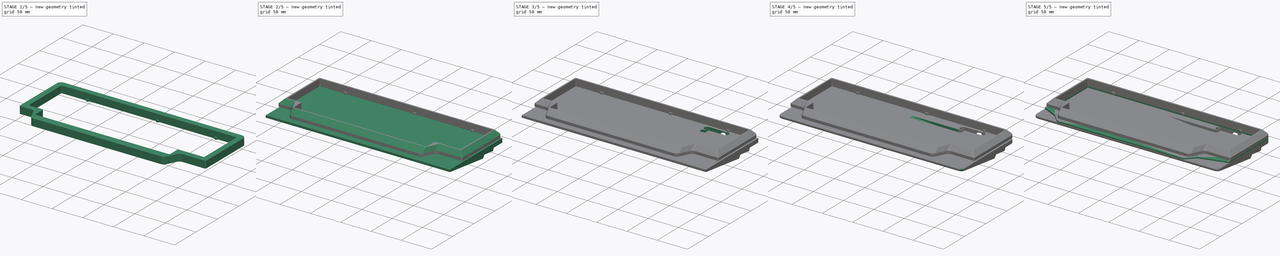
[diagram: build sequence overview — one tinted view per stage of 5, left to right]
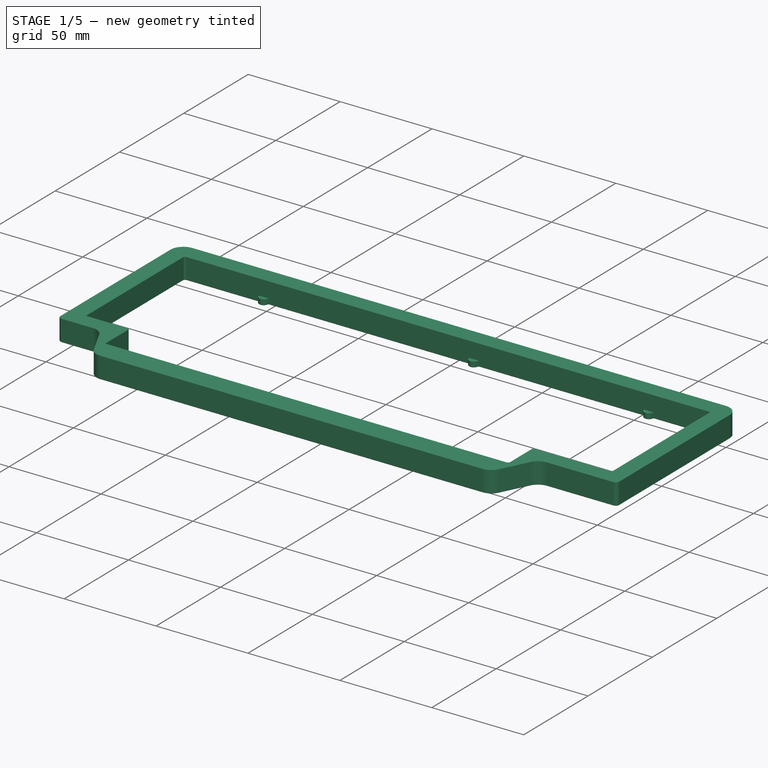
[diagram: stage 1 of 5 — iso view after this stage's code; geometry added in this stage tinted green]
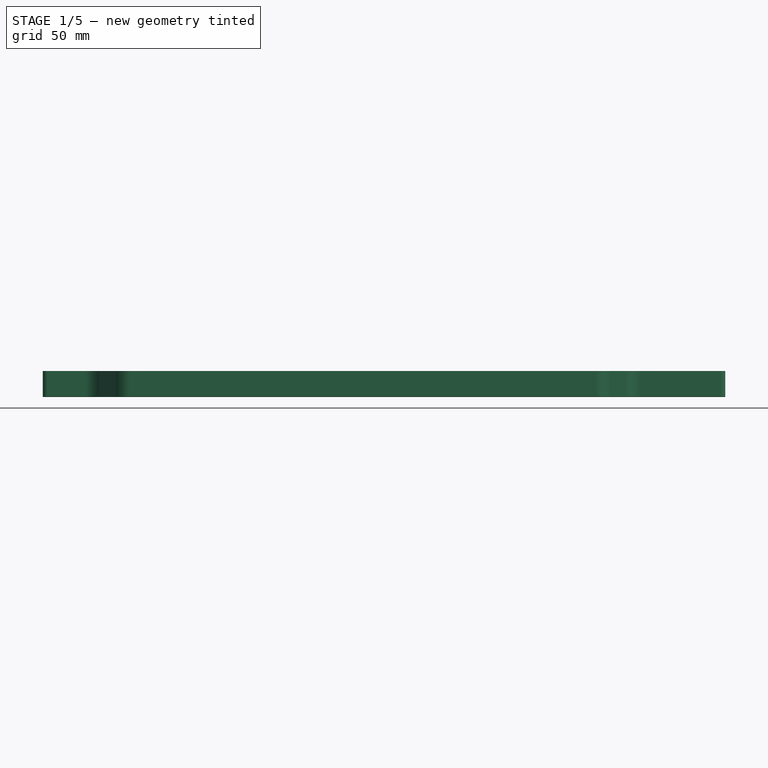
[diagram: stage 1 of 5 — front view after this stage's code; geometry added in this stage tinted green]
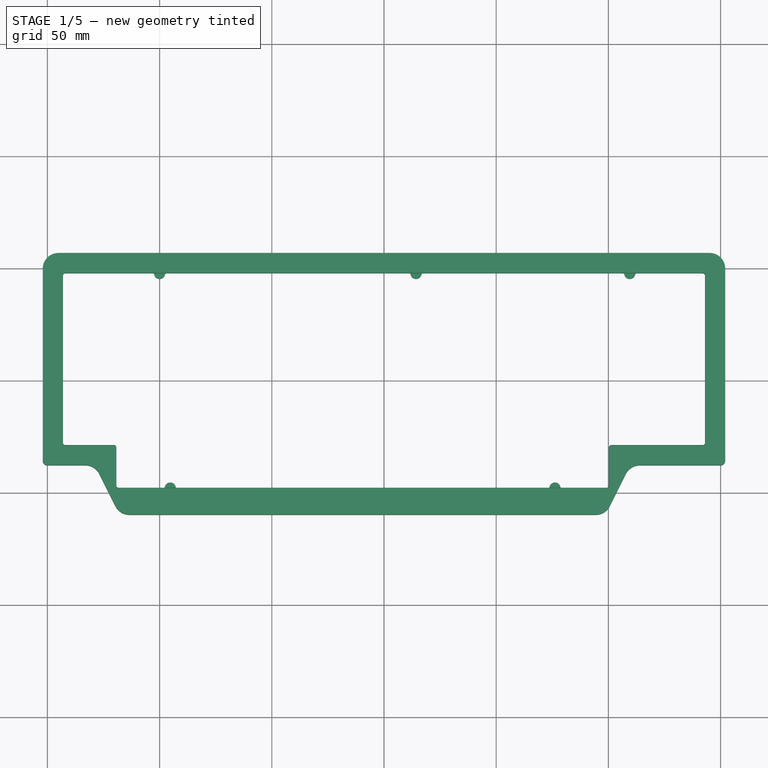
[diagram: stage 1 of 5 — top view after this stage's code; geometry added in this stage tinted green]
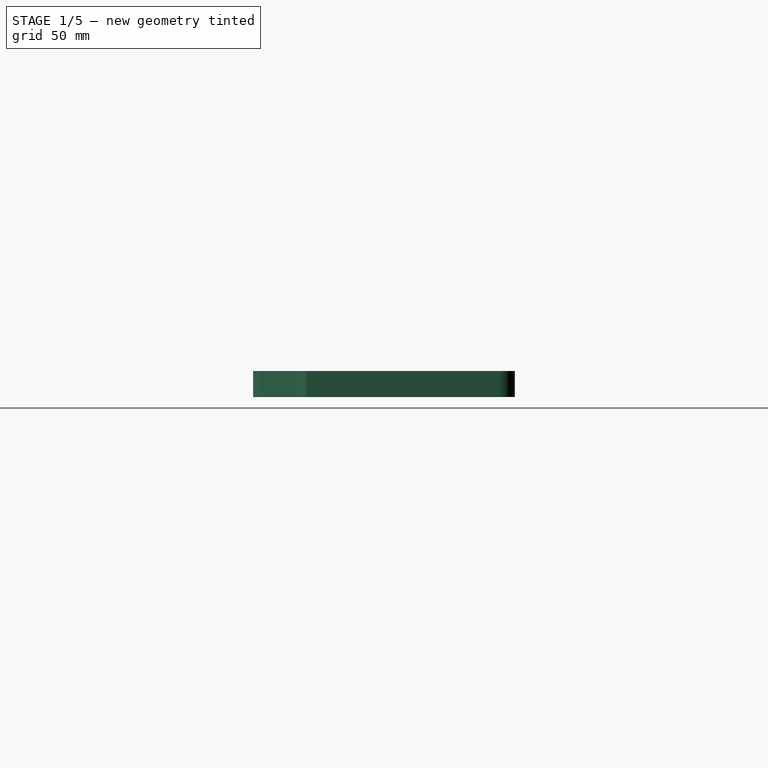
[diagram: stage 1 of 5 — right view after this stage's code; geometry added in this stage tinted green]
FCSTD DOCUMENT  (FreeCAD 0.21R33771 (Git))
Label: Cr0wn60_2
License: All rights reserved
LicenseURL: http://en.wikipedia.org/wiki/All_rights_reserved
objects: Sketcher::SketchObject×21, PartDesign::Fillet×10, PartDesign::Pad×8, PartDesign::Pocket×6, PartDesign::Hole×5, PartDesign::Body×3, App::Part×3, PartDesign::Chamfer×3, Spreadsheet::Sheet×1, Part::Feature×1, PartDesign::SubtractiveLoft×1, App::DocumentObjectGroup×1
note: 91 computed .brp shape members not serialized (recipe doc carries the construction recipe); baked Part::Feature solids carry a one-line shape summary decoded from their .brp

FEATURE [Spreadsheet::Sheet] Spreadsheet
  cells = A2='kp; B2(kp)=19.05; C2='ピッチ; A3='err; B3(err)=0.2; C3='公差; A4='cw; B4(cw)=9; C4='ベゼル幅; A5='bc; B5(bc)=15; C5='列; A6='br; B6(br)=5; C6='行; A7='lbl; B7(lbl)=1.25; C7='左ブロッカー; A8='rbl; B8(rbl)=2.25; C8='右ブロッカー; A9='bt; B9(bt)=1.6; C9='基板厚さ; A10='kt; B10(kt)=5; C10='基板 to スイッチプレート上面; A11='ct; B11(ct)=5; C11='スイッチプレート上面 to キャップ; A12='led; B12(led)=1; C12='？; A13='p1; B13(p1)=2.25; C13='ポッチ; A14='p2; B14(p2)=1.75; A15='p3; B15(p3)=6.75; A16='p4; B16(p4)=1.25; A17='p5; B17(p5)=1.25
FEATURE [Sketcher::SketchObject] Sketch
  FullyConstrained = true
  MapMode = 5
  Support = -> [XY_Plane001]
  expr: Constraints[16] = Spreadsheet.kp
  expr: Constraints[17] = Spreadsheet.kp * 4 + Spreadsheet.err * 2
  expr: Constraints[18] = Spreadsheet.kp
  expr: Constraints[19] = Spreadsheet.kp * Spreadsheet.bc + Spreadsheet.err * 2
  expr: Constraints[20] = Spreadsheet.kp * 1.25
  expr: Constraints[21] = Spreadsheet.kp * 2.25
  expr: Constraints[36] = Spreadsheet.kp * Spreadsheet.bc + (Spreadsheet.err + Spreadsheet.cw) * 2
  expr: Constraints[37] = Spreadsheet.cw
  expr: Constraints[38] = Spreadsheet.cw
  expr: Constraints[39] = Spreadsheet.kp * Spreadsheet.br + (Spreadsheet.err + Spreadsheet.cw) * 2
  expr: Constraints[53] = Spreadsheet.kp * (Spreadsheet.br - 1) + (Spreadsheet.err + Spreadsheet.cw) * 2
  expr: Constraints[59] = Spreadsheet.kp / 2
  expr: Constraints[60] = Spreadsheet.kp / 2
  sketch-geometry (23):
    g0: LineSegment StartX=-143.075 StartY=47.825 StartZ=0 EndX=143.075 EndY=47.825 EndZ=0
    g1: LineSegment StartX=143.075 StartY=47.825 StartZ=0 EndX=143.075 EndY=-28.775 EndZ=0
    g2: LineSegment StartX=143.075 StartY=-28.775 StartZ=0 EndX=100.213 EndY=-28.775 EndZ=0
    g3: LineSegment StartX=100.213 StartY=-28.775 StartZ=0 EndX=100.213 EndY=-47.825 EndZ=0
    g4: LineSegment StartX=100.213 StartY=-47.825 StartZ=0 EndX=-119.263 EndY=-47.825 EndZ=0
    g5: LineSegment StartX=-119.262 StartY=-47.825 StartZ=0 EndX=-119.262 EndY=-28.775 EndZ=0
    g6: LineSegment StartX=-119.262 StartY=-28.775 StartZ=0 EndX=-143.075 EndY=-28.775 EndZ=0
    g7: LineSegment StartX=-143.075 StartY=-28.775 StartZ=0 EndX=-143.075 EndY=47.825 EndZ=0
    g8: LineSegment StartX=-152.075 StartY=56.825 StartZ=0 EndX=152.075 EndY=56.825 EndZ=0
    g9: LineSegment StartX=152.075 StartY=56.825 StartZ=0 EndX=152.075 EndY=-56.825 EndZ=0
    g10: LineSegment StartX=152.075 StartY=-56.825 StartZ=0 EndX=-152.075 EndY=-56.825 EndZ=0
    g11: LineSegment StartX=-152.075 StartY=-56.825 StartZ=0 EndX=-152.075 EndY=56.825 EndZ=0
    g12: LineSegment StartX=-152.075 StartY=56.825 StartZ=0 EndX=152.075 EndY=-56.825 EndZ=0
    g13: LineSegment StartX=152.075 StartY=56.825 StartZ=0 EndX=-152.075 EndY=-56.825 EndZ=0
    g14: LineSegment StartX=-152.075 StartY=56.825 StartZ=0 EndX=-152.075 EndY=-37.775 EndZ=0
    g15: LineSegment StartX=-152.075 StartY=-37.775 StartZ=0 EndX=-128.787 EndY=-37.775 EndZ=0
    g16: LineSegment StartX=-128.787 StartY=-37.775 StartZ=0 EndX=-117.762 EndY=-59.825 EndZ=0
    g17: LineSegment StartX=-117.762 StartY=-59.825 StartZ=0 EndX=98.7125 EndY=-59.825 EndZ=0
    g18: LineSegment StartX=98.7125 StartY=-59.825 StartZ=0 EndX=109.738 EndY=-37.775 EndZ=0
    g19: LineSegment StartX=109.738 StartY=-37.775 StartZ=0 EndX=152.075 EndY=-37.775 EndZ=0
    g20: LineSegment StartX=152.075 StartY=-37.775 StartZ=0 EndX=152.075 EndY=56.825 EndZ=0
    g21: GeomPoint X=-119.262 Y=-56.825 Z=0
    g22: GeomPoint X=100.213 Y=-56.825 Z=0
  constraints (64):
    c: Horizontal(g0)
    c: Coincident(g1,g0)
    c: Vertical(g1)
    c: Coincident(g2,g1)
    c: Horizontal(g2)
    c: Coincident(g3,g2)
    c: Vertical(g3)
    c: Coincident(g4,g3)
    c: Horizontal(g4)
    c: Coincident(g5,g4)
    c: Vertical(g5)
    c: Coincident(g6,g5)
    c: Horizontal(g6)
    c: Coincident(g7,g6)
    c: Coincident(g7,g0)
    c: Vertical(g7)
    c: Distance(g5) = 19.05
    c: Distance(g7) = 76.6
    c: Distance(g3) = 19.05
    c: Distance(g0) = 286.15
    c: Distance(g6) = 23.8125
    c: Distance(g2) = 42.8625
    c: Horizontal(g8)
    c: Coincident(g9,g8)
    c: Vertical(g9)
    c: Coincident(g10,g9)
    c: Horizontal(g10)
    c: Coincident(g11,g10)
    c: Coincident(g11,g8)
    c: Vertical(g11)
    c: Coincident(g12,g8)
    c: Coincident(g12,g9)
    c: Coincident(g13,g8)
    c: Coincident(g13,g10)
    c: PointOnObject(g-1,g12)
    c: PointOnObject(g-1,g13)
    c: Distance(g8) = 304.15
    c: DistanceY(g0,g8) = 9
    c: DistanceX(g8,g0) = 9
    c: Distance(g11) = 113.65
    c: Coincident(g14,g8)
    c: Vertical(g14)
    c: Coincident(g15,g14)
    c: Horizontal(g15)
    c: Coincident(g16,g15)
    c: Coincident(g17,g16)
    c: Horizontal(g17)
    c: Coincident(g18,g17)
    c: Coincident(g19,g18)
    c: Horizontal(g19)
    c: Coincident(g20,g19)
    c: Coincident(g20,g8)
    c: Vertical(g20)
    c: Distance(g14) = 94.6
    c: Equal(g14,g20)
    c: PointOnObject(g21,g16)
    c: PointOnObject(g22,g18)
    c: PointOnObject(g21,g10)
    c: PointOnObject(g22,g10)
    c: DistanceX(g15,g21) = 9.525
    c: DistanceX(g22,g18) = 9.525
    c: Distance(g16,g10) = 3
    c: PointOnObject(g21,g5)
    c: PointOnObject(g22,g3)
FEATURE [PartDesign::Pad] Pad
  Direction = (0,0,1)
  Length = 11.6
  Length2 = 100
  Profile = -> Sketch
  ReferenceAxis = -> Sketch [N_Axis]
  Refine = true
  Type = 0
  expr: Length = Spreadsheet.kt + Spreadsheet.bt + Spreadsheet.ct
FEATURE [Sketcher::SketchObject] Sketch011
  ExternalGeometry = -> [Pad]
  FullyConstrained = true
  MapMode = 5
  Placement = pos=(0,0,0) rot=(1,0,0;3.14159rad)
  Support = -> [Pad]
  expr: Constraints[46] = Spreadsheet.kp * 1.75 + Spreadsheet.err
  expr: Constraints[61] = Spreadsheet.kp * 2.25 + Spreadsheet.err
  expr: Constraints[62] = Spreadsheet.kp * 6.75 + Spreadsheet.err
  expr: Constraints[68] = Spreadsheet.kp * 1.25 + Spreadsheet.err
  expr: Constraints[74] = Spreadsheet.kp * 1.25 + Spreadsheet.err
  sketch-geometry (20):
    g0: ArcOfCircle CenterX=14.2875 CenterY=-47.825 CenterZ=0 NormalX=0 NormalY=0 NormalZ=1 AngleXU=0 Radius=2.5 StartAngle=0.167448 EndAngle=2.97414
    g1: ArcOfCircle CenterX=109.538 CenterY=-47.825 CenterZ=0 NormalX=0 NormalY=0 NormalZ=1 AngleXU=0 Radius=2.5 StartAngle=0.167448 EndAngle=2.97414
    g2: ArcOfCircle CenterX=-100.012 CenterY=-47.825 CenterZ=0 NormalX=0 NormalY=0 NormalZ=1 AngleXU=0 Radius=2.5 StartAngle=0.167448 EndAngle=2.97414
    g3: ArcOfCircle CenterX=76.2 CenterY=47.825 CenterZ=0 NormalX=0 NormalY=0 NormalZ=1 AngleXU=0 Radius=2.5 StartAngle=3.30904 EndAngle=6.11574
    g4: ArcOfCircle CenterX=-95.25 CenterY=47.825 CenterZ=0 NormalX=0 NormalY=0 NormalZ=1 AngleXU=0 Radius=2.5 StartAngle=3.30904 EndAngle=6.11574
    g5: ArcOfCircle CenterX=-102.971 CenterY=-47.325 CenterZ=0 NormalX=0 NormalY=0 NormalZ=1 AngleXU=0 Radius=0.5 StartAngle=4.71239 EndAngle=6.11574
    g6: ArcOfCircle CenterX=-97.0545 CenterY=-47.325 CenterZ=0 NormalX=0 NormalY=0 NormalZ=1 AngleXU=0 Radius=0.5 StartAngle=3.30904 EndAngle=4.71239
    g7: ArcOfCircle CenterX=11.3295 CenterY=-47.325 CenterZ=0 NormalX=0 NormalY=0 NormalZ=1 AngleXU=0 Radius=0.5 StartAngle=4.71239 EndAngle=6.11574
    g8: ArcOfCircle CenterX=17.2455 CenterY=-47.325 CenterZ=0 NormalX=0 NormalY=0 NormalZ=1 AngleXU=0 Radius=0.5 StartAngle=3.30904 EndAngle=4.71239
    g9: ArcOfCircle CenterX=106.579 CenterY=-47.325 CenterZ=0 NormalX=0 NormalY=0 NormalZ=1 AngleXU=0 Radius=0.5 StartAngle=4.71239 EndAngle=6.11574
    g10: ArcOfCircle CenterX=112.496 CenterY=-47.325 CenterZ=0 NormalX=0 NormalY=0 NormalZ=1 AngleXU=0 Radius=0.5 StartAngle=3.30904 EndAngle=4.71239
    g11: ArcOfCircle CenterX=-98.208 CenterY=47.325 CenterZ=0 NormalX=0 NormalY=0 NormalZ=1 AngleXU=0 Radius=0.5 StartAngle=0.167448 EndAngle=1.5708
    g12: ArcOfCircle CenterX=-92.292 CenterY=47.325 CenterZ=0 NormalX=0 NormalY=0 NormalZ=1 AngleXU=0 Radius=0.5 StartAngle=1.5708 EndAngle=2.97414
    g13: ArcOfCircle CenterX=73.242 CenterY=47.325 CenterZ=0 NormalX=0 NormalY=0 NormalZ=1 AngleXU=0 Radius=0.5 StartAngle=0.167448 EndAngle=1.5708
    g14: ArcOfCircle CenterX=79.158 CenterY=47.325 CenterZ=0 NormalX=0 NormalY=0 NormalZ=1 AngleXU=0 Radius=0.5 StartAngle=1.5708 EndAngle=2.97414
    g15: LineSegment StartX=-98.208 StartY=47.825 StartZ=0 EndX=-92.292 EndY=47.825 EndZ=0
    g16: LineSegment StartX=73.242 StartY=47.825 StartZ=0 EndX=79.158 EndY=47.825 EndZ=0
    g17: LineSegment StartX=106.579 StartY=-47.825 StartZ=0 EndX=112.496 EndY=-47.825 EndZ=0
    g18: LineSegment StartX=11.3295 StartY=-47.825 StartZ=0 EndX=17.2455 EndY=-47.825 EndZ=0
    g19: LineSegment StartX=-102.971 StartY=-47.825 StartZ=0 EndX=-97.0545 EndY=-47.825 EndZ=0
  constraints (75):
    c: Radius(g2) = 2.5
    c: Equal(g2,g1)
    c: Equal(g1,g0)
    c: Equal(g0,g3)
    c: Equal(g3,g4)
    c: Coincident(g5,g2)
    c: Radius(g5) = 0.5
    c: Coincident(g6,g2)
    c: Tangent(g5,g2,g2) = 1.5708
    c: Equal(g5,g6)
    c: Tangent(g6,g2,g2) = 1.5708
    c: Coincident(g7,g0)
    c: Coincident(g8,g0)
    c: Tangent(g0,g7,g0) = 1.5708
    c: Tangent(g0,g8,g0) = 1.5708
    c: Coincident(g9,g1)
    c: Coincident(g10,g1)
    c: Tangent(g1,g9,g1) = 1.5708
    c: Tangent(g1,g10,g1) = 1.5708
    c: Coincident(g11,g4)
    c: Coincident(g12,g4)
    c: Coincident(g14,g3)
    c: Tangent(g14,g3,g3) = 1.5708
    c: Coincident(g13,g3)
    c: Tangent(g13,g3,g3) = 1.5708
    c: Tangent(g11,g4,g4) = 1.5708
    c: Tangent(g12,g4,g4) = 1.5708
    c: Equal(g11,g12)
    c: Equal(g12,g13)
    c: Equal(g13,g14)
    c: Equal(g14,g10)
    c: Equal(g10,g9)
    c: Equal(g9,g8)
    c: Equal(g8,g7)
    c: Equal(g7,g6)
    c: Coincident(g15,g11)
    c: Coincident(g15,g12)
    c: Coincident(g16,g13)
    c: Coincident(g16,g14)
    c: Coincident(g17,g9)
    c: Coincident(g17,g10)
    c: Coincident(g18,g7)
    c: Coincident(g18,g8)
    c: Coincident(g19,g5)
    c: Coincident(g19,g6)
    c: PointOnObject(g1,g-3)
    c: Distance(g1,g-3) = 33.5375
    c: PointOnObject(g10,g-3)
    c: Tangent(g10,g-3,g10) = -1.5708
    c: PointOnObject(g9,g-3)
    c: Tangent(g9,g-3,g9) = -1.5708
    c: Tangent(g8,g-3,g8) = -1.5708
    c: Tangent(g7,g-3,g7) = -1.5708
    c: PointOnObject(g0,g-3)
    c: PointOnObject(g8,g-3)
    c: PointOnObject(g7,g-3)
    c: PointOnObject(g6,g-3)
    c: PointOnObject(g5,g-3)
    c: Tangent(g5,g-3,g5) = -1.5708
    c: Tangent(g6,g-3,g6) = -1.5708
    c: PointOnObject(g2,g19)
    c: Distance(g2,g-3) = 43.0625
    c: Distance(g-3,g0) = 128.787
    c: PointOnObject(g3,g16)
    c: PointOnObject(g14,g-4)
    c: PointOnObject(g13,g-4)
    c: Tangent(g13,g-4,g13) = -1.5708
    c: Tangent(g14,g-4,g14) = -1.5708
    c: Distance(g3,g-4) = 24.0125
    c: PointOnObject(g4,g15)
    c: PointOnObject(g11,g-4)
    c: PointOnObject(g12,g-4)
    c: Tangent(g12,g-4,g12) = -1.5708
    c: Tangent(g11,g-4,g11) = -1.5708
    c: DistanceX(g-4,g4) = 24.0125
FEATURE [PartDesign::Pad] Pad005
  BaseFeature = -> Pad
  Direction = (0,0,-1)
  Length = 3
  Length2 = 100
  Profile = -> Sketch011
  ReferenceAxis = -> Sketch011 [N_Axis]
  Refine = true
  Reversed = true
  Type = 0
FEATURE [PartDesign::Body] Body001
  Group = -> [Sketch001,Pad001,Fillet004,Fillet013,Fillet005,Fillet006,Sketch014,Hole003]
  Origin = -> Origin003
  Tip = -> Hole003
FEATURE [App::Part] Part001  label="MiddlePlate"
  Group = -> [Body001]
  Origin = -> Origin002
FEATURE [PartDesign::Fillet] Fillet
  Base = -> Pad005 [Edge1,Edge2,Edge24,Edge30,Edge28,Edge26]
  BaseFeature = -> Pad005
  Radius = 7
  SupportTransform = false
  UseAllEdges = false
FEATURE [PartDesign::Fillet] Fillet014
  Base = -> Fillet [Edge70,Edge69]
  BaseFeature = -> Fillet
  Radius = 2
  SupportTransform = false
  UseAllEdges = false
FEATURE [PartDesign::Fillet] Fillet015
  Base = -> Fillet014 [Edge93,Edge91,Edge104,Edge108,Edge116,Edge130]
  BaseFeature = -> Fillet014
  Radius = 1
  SupportTransform = false
  UseAllEdges = false
FEATURE [PartDesign::Fillet] Fillet016
  Base = -> Fillet015 [Edge116,Edge74]
  BaseFeature = -> Fillet015
  Radius = 1.2
  SupportTransform = false
  UseAllEdges = false
FEATURE [PartDesign::Chamfer] Chamfer
  Angle = 45
  Base = -> Fillet016 [Edge78,Edge9,Edge37]
  BaseFeature = -> Fillet016
  ChamferType = 0
  FlipDirection = false
  Size = 0.2
  Size2 = 1
  SupportTransform = false
  UseAllEdges = false
  expr: Size = Spreadsheet.err
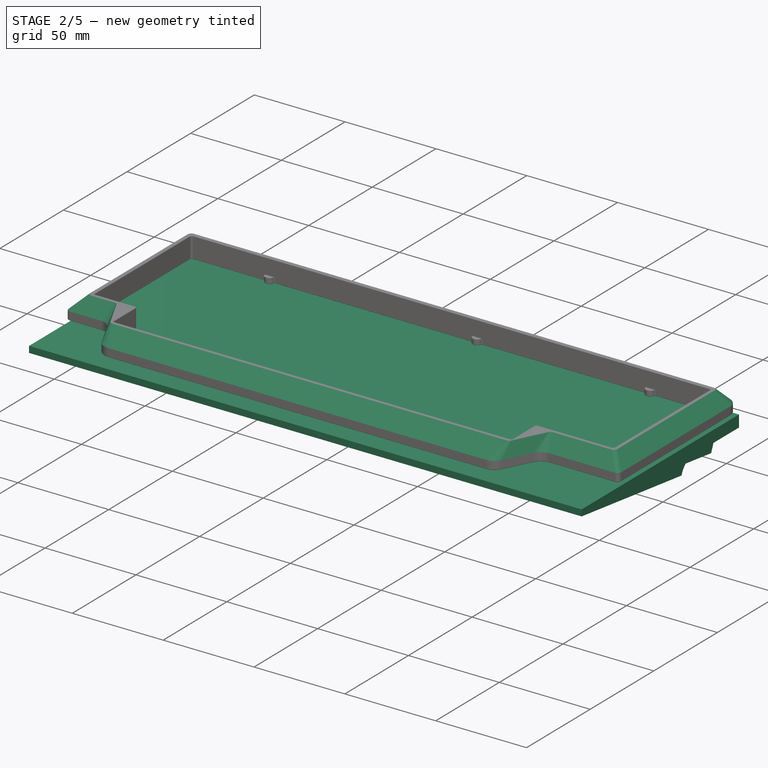
[diagram: stage 2 of 5 — iso view after this stage's code; geometry added in this stage tinted green]
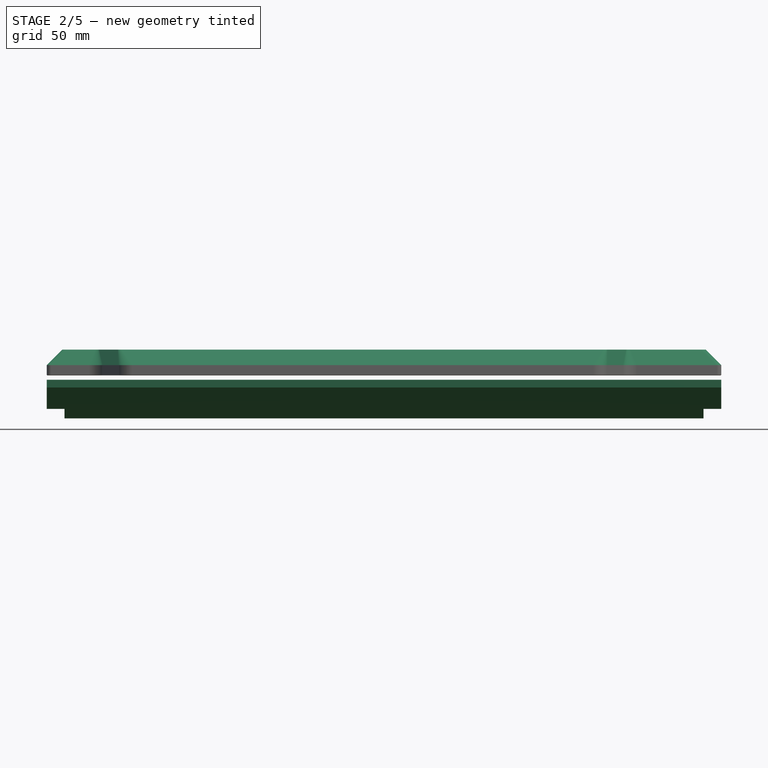
[diagram: stage 2 of 5 — front view after this stage's code; geometry added in this stage tinted green]
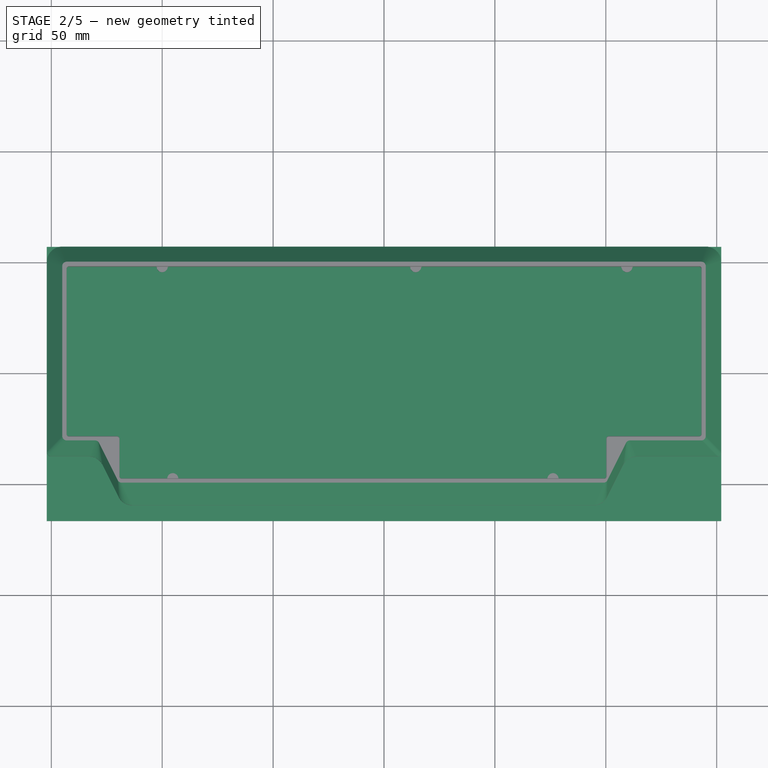
[diagram: stage 2 of 5 — top view after this stage's code; geometry added in this stage tinted green]
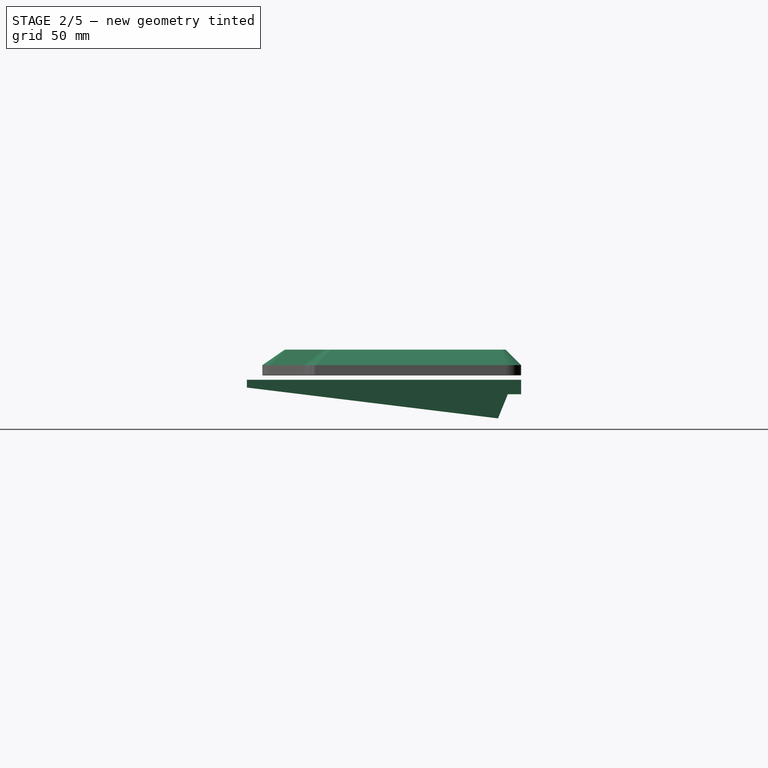
[diagram: stage 2 of 5 — right view after this stage's code; geometry added in this stage tinted green]
FEATURE [Sketcher::SketchObject] Sketch002
  AttachmentOffset = pos=(0,0,-2) rot=(0,0,1;0rad)
  FullyConstrained = true
  MapMode = 5
  Placement = pos=(0,0,-2) rot=(0,0,1;0rad)
  Support = -> [XY_Plane005]
  expr: .AttachmentOffset.Base.z = 2 * -1
  expr: Constraints[8] = Spreadsheet.kp * Spreadsheet.br + (Spreadsheet.cw + Spreadsheet.err) * 2
  expr: Constraints[9] = Spreadsheet.kp * Spreadsheet.bc + (Spreadsheet.err + Spreadsheet.cw) * 2
  sketch-geometry (7):
    g0: LineSegment StartX=-152.075 StartY=56.825 StartZ=0 EndX=152.075 EndY=56.825 EndZ=0
    g1: LineSegment StartX=152.075 StartY=56.825 StartZ=0 EndX=152.075 EndY=-56.825 EndZ=0
    g2: LineSegment StartX=152.075 StartY=-56.825 StartZ=0 EndX=-152.075 EndY=-56.825 EndZ=0
    g3: LineSegment StartX=-152.075 StartY=-56.825 StartZ=0 EndX=-152.075 EndY=56.825 EndZ=0
    g4: LineSegment StartX=-152.075 StartY=-56.825 StartZ=0 EndX=-152.075 EndY=-66.825 EndZ=0
    g5: LineSegment StartX=-152.075 StartY=-66.825 StartZ=0 EndX=152.075 EndY=-66.825 EndZ=0
    g6: LineSegment StartX=152.075 StartY=-66.825 StartZ=0 EndX=152.075 EndY=-56.825 EndZ=0
  constraints (18):
    c: Coincident(g0,g1)
    c: Coincident(g1,g2)
    c: Coincident(g2,g3)
    c: Coincident(g3,g0)
    c: Horizontal(g2)
    c: Vertical(g3)
    c: Symmetric(g0,g0,g-2)
    c: Symmetric(g1,g0,g-1)
    c: Distance(g3) = 113.65
    c: Distance(g2) = 304.15
    c: Coincident(g4,g3)
    c: Vertical(g4)
    c: Coincident(g5,g4)
    c: Horizontal(g5)
    c: Coincident(g6,g5)
    c: Coincident(g6,g1)
    c: Vertical(g6)
    c: Distance(g4) = 10
FEATURE [PartDesign::Pad] Pad002
  Direction = (0,0,1)
  Length = 3.5
  Length2 = 100
  Profile = -> Sketch002
  Refine = true
  Reversed = true
  Type = 0
FEATURE [Sketcher::SketchObject] Sketch003
  ExternalGeometry = -> [Pad002]
  FullyConstrained = true
  MapMode = 5
  Placement = pos=(152.075,0,0) rot=(0.57735,0.57735,0.57735;2.0944rad)
  Support = -> [Pad002]
  sketch-geometry (5):
    g0: LineSegment StartX=-66.825 StartY=-5.5 StartZ=0 EndX=11.6859 EndY=-15.1399 EndZ=0
    g1: ArcOfCircle CenterX=20.825 CenterY=-18.1094 CenterZ=0 NormalX=0 NormalY=0 NormalZ=1 AngleXU=0 Radius=9.6094 StartAngle=1.5708 EndAngle=2.82743
    g2: LineSegment StartX=-66.825 StartY=-5.5 StartZ=0 EndX=56.825 EndY=-5.5 EndZ=0
    g3: LineSegment StartX=20.825 StartY=-8.5 StartZ=0 EndX=56.825 EndY=-8.5 EndZ=0
    g4: LineSegment StartX=56.825 StartY=-5.5 StartZ=0 EndX=56.825 EndY=-8.5 EndZ=0
  constraints (14):
    c: Coincident(g1,g0)
    c: Angle(g1) = 1.25664
    c: Coincident(g2,g0)
    c: Horizontal(g3)
    c: Coincident(g4,g2)
    c: Coincident(g4,g3)
    c: Vertical(g4)
    c: Coincident(g0,g-3)
    c: Coincident(g2,g-3)
    c: Distance(g4) = 3
    c: Angle(g0,g2) = 0.122173
    c: Coincident(g1,g3)
    c: Tangent(g3,g1,g1) = 1.5708
    c: Distance(g3) = 36
FEATURE [PartDesign::Pad] Pad003
  BaseFeature = -> Pad002
  Direction = (1,0,0)
  Length = 10
  Length2 = 100
  Profile = -> Sketch003
  ReferenceAxis = -> Sketch003 [N_Axis]
  Refine = true
  Type = 3
  UpToFace = -> Pad002 [Face6]
FEATURE [Sketcher::SketchObject] Sketch004
  AttachmentOffset = pos=(0,0,-8) rot=(0,0,1;0rad)
  ExternalGeometry = -> [Pad003]
  FullyConstrained = true
  MapMode = 5
  Placement = pos=(144.075,-7e-15,-3.585e-13) rot=(0.57735,0.57735,0.57735;2.0944rad)
  Support = -> [Pad003]
  sketch-geometry (4):
    g0: LineSegment StartX=11.6859 StartY=-15.1399 StartZ=0 EndX=46.4192 EndY=-19.4046 EndZ=0
    g1: ArcOfCircle CenterX=20.825 CenterY=-18.1094 CenterZ=0 NormalX=0 NormalY=0 NormalZ=1 AngleXU=0 Radius=9.6094 StartAngle=1.5708 EndAngle=2.82743
    g2: LineSegment StartX=20.825 StartY=-8.5 StartZ=0 EndX=50.825 EndY=-8.5 EndZ=0
    g3: LineSegment StartX=46.4192 StartY=-19.4046 StartZ=0 EndX=50.825 EndY=-8.5 EndZ=0
  constraints (11):
    c: Coincident(g1,g-4)
    c: Coincident(g1,g-4)
    c: Coincident(g1,g0)
    c: Angle(g0,g-3) = 0.122173
    c: Angle(g1) = 1.25664
    c: Horizontal(g2)
    c: Coincident(g3,g0)
    c: Coincident(g3,g2)
    c: Angle(g3,g0) = 1.8326
    c: Coincident(g2,g1)
    c: Distance(g2,g-3) = 6
FEATURE [PartDesign::Pad] Pad004
  BaseFeature = -> Pad003
  Direction = (1,1e-16,-2.3e-15)
  Length = 10
  Length2 = 100
  Offset = 8
  Profile = -> Sketch004
  Refine = true
  Type = 3
  UpToFace = -> Pad003 [Face7]
FEATURE [Sketcher::SketchObject] Sketch037
  ExternalGeometry = -> [Chamfer]
  FullyConstrained = false
  MapMode = 5
  Placement = pos=(0,0,11.6) rot=(0,0,1;0rad)
  Support = -> [Chamfer]
  expr: Constraints[22] = Spreadsheet.kp * Spreadsheet.br + Spreadsheet.err * 2 + 4
  expr: Constraints[23] = Spreadsheet.kp * Spreadsheet.bc + Spreadsheet.err * 2 + 4
  expr: Constraints[33] = Spreadsheet.kp
  expr: Constraints[65] = Spreadsheet.kp * (Spreadsheet.bc + 2)
  expr: Constraints[66] = Spreadsheet.kp * (Spreadsheet.br + 2)
  sketch-geometry (22):
    g0: LineSegment StartX=-143.075 StartY=49.8881 StartZ=0 EndX=143.075 EndY=49.8881 EndZ=0
    g1: LineSegment StartX=145.075 StartY=47.8881 StartZ=0 EndX=145.075 EndY=-28.7119 EndZ=0
    g2: LineSegment StartX=143.075 StartY=-30.7119 StartZ=0 EndX=110.94 EndY=-30.7119 EndZ=0
    g3: LineSegment StartX=109.151 StartY=-31.8175 StartZ=0 EndX=100.731 EndY=-48.6564 EndZ=0
    g4: LineSegment StartX=98.9426 StartY=-49.7619 StartZ=0 EndX=-118.271 EndY=-49.7619 EndZ=0
    g5: LineSegment StartX=-120.06 StartY=-48.6564 StartZ=0 EndX=-128.479 EndY=-31.8175 EndZ=0
    g6: LineSegment StartX=-130.268 StartY=-30.7119 StartZ=0 EndX=-143.075 EndY=-30.7119 EndZ=0
    g7: LineSegment StartX=-145.075 StartY=-28.7119 StartZ=0 EndX=-145.075 EndY=47.8881 EndZ=0
    g8: ArcOfCircle CenterX=-143.075 CenterY=47.8881 CenterZ=0 NormalX=0 NormalY=0 NormalZ=1 AngleXU=0 Radius=2 StartAngle=1.5708 EndAngle=3.14159
    g9: ArcOfCircle CenterX=143.075 CenterY=47.8881 CenterZ=0 NormalX=0 NormalY=0 NormalZ=1 AngleXU=0 Radius=2 StartAngle=1.9e-15 EndAngle=1.5708
    g10: ArcOfCircle CenterX=143.075 CenterY=-28.7119 CenterZ=0 NormalX=0 NormalY=0 NormalZ=1 AngleXU=0 Radius=2 StartAngle=4.71239 EndAngle=6.28319
    g11: ArcOfCircle CenterX=110.94 CenterY=-32.7119 CenterZ=0 NormalX=0 NormalY=0 NormalZ=1 AngleXU=0 Radius=2 StartAngle=1.5708 EndAngle=2.67795
    g12: ArcOfCircle CenterX=98.9426 CenterY=-47.7619 CenterZ=0 NormalX=0 NormalY=0 NormalZ=1 AngleXU=0 Radius=2 StartAngle=4.71239 EndAngle=5.81954
    g13: ArcOfCircle CenterX=-118.271 CenterY=-47.7619 CenterZ=0 NormalX=0 NormalY=0 NormalZ=1 AngleXU=0 Radius=2 StartAngle=3.60524 EndAngle=4.71239
    g14: ArcOfCircle CenterX=-130.268 CenterY=-32.7119 CenterZ=0 NormalX=0 NormalY=0 NormalZ=1 AngleXU=0 Radius=2 StartAngle=0.463648 EndAngle=1.5708
    g15: ArcOfCircle CenterX=-143.075 CenterY=-28.7119 CenterZ=0 NormalX=0 NormalY=0 NormalZ=1 AngleXU=0 Radius=2 StartAngle=3.14159 EndAngle=4.71239
    g16: LineSegment StartX=143.075 StartY=-28.7119 StartZ=0 EndX=98.9426 EndY=-28.7119 EndZ=0
    g17: LineSegment StartX=98.9426 StartY=-28.7119 StartZ=0 EndX=98.9426 EndY=-47.7619 EndZ=0
    g18: LineSegment StartX=-161.925 StartY=66.675 StartZ=0 EndX=161.925 EndY=66.675 EndZ=0
    g19: LineSegment StartX=161.925 StartY=66.675 StartZ=0 EndX=161.925 EndY=-66.675 EndZ=0
    g20: LineSegment StartX=161.925 StartY=-66.675 StartZ=0 EndX=-161.925 EndY=-66.675 EndZ=0
    g21: LineSegment StartX=-161.925 StartY=-66.675 StartZ=0 EndX=-161.925 EndY=66.675 EndZ=0
  constraints (67):
    c: Vertical(g1)
    c: Horizontal(g2)
    c: Horizontal(g4)
    c: Horizontal(g6)
    c: Vertical(g7)
    c: Coincident(g8,g0)
    c: Coincident(g8,g7)
    c: Coincident(g9,g0)
    c: Coincident(g9,g1)
    c: Coincident(g10,g1)
    c: Coincident(g10,g2)
    c: Coincident(g11,g2)
    c: Coincident(g11,g3)
    c: Coincident(g12,g3)
    c: Coincident(g12,g4)
    c: Coincident(g13,g5)
    c: Coincident(g13,g4)
    c: Coincident(g14,g5)
    c: Coincident(g14,g6)
    c: Coincident(g15,g7)
    c: Coincident(g15,g6)
    c: Symmetric(g0,g0,g-2)
    c: Distance(g4,g0) = 99.65
    c: Distance(g7,g1) = 290.15
    c: Equal(g8,g9)
    c: Equal(g9,g10)
    c: Equal(g10,g12)
    c: Equal(g12,g13)
    c: Equal(g13,g14)
    c: Equal(g14,g15)
    c: Equal(g15,g11)
    c: Radius(g9) = 2
    c: PointOnObject(g6,g2)
    c: Distance(g2,g4) = 19.05
    c: Tangent(g11,g2,g2) = -1.5708
    c: Tangent(g11,g3,g3) = -1.5708
    c: Tangent(g3,g12,g3) = 1.5708
    c: Tangent(g4,g12,g4) = 1.5708
    c: Tangent(g4,g13,g4) = 1.5708
    c: Tangent(g5,g13,g5) = 1.5708
    c: Tangent(g14,g5,g5) = -1.5708
    c: Tangent(g14,g6,g6) = -1.5708
    c: Tangent(g15,g6,g6) = 1.5708
    c: Tangent(g7,g15,g7) = 1.5708
    c: Tangent(g8,g7,g7) = 1.5708
    c: Tangent(g8,g0,g0) = 1.5708
    c: Tangent(g0,g9,g0) = 1.5708
    c: Tangent(g9,g1,g1) = 1.5708
    c: Tangent(g1,g10,g1) = 1.5708
    c: Tangent(g2,g10,g2) = 1.5708
    c: Parallel(g5,g-3)
    c: Parallel(g3,g-4)
    c: Coincident(g16,g10)
    c: Horizontal(g16)
    c: Coincident(g17,g16)
    c: Coincident(g17,g12)
    c: Vertical(g17)
    c: Coincident(g18,g19)
    c: Coincident(g19,g20)
    c: Coincident(g20,g21)
    c: Coincident(g21,g18)
    c: Horizontal(g18)
    c: Vertical(g19)
    c: Symmetric(g20,g19,g-2)
    c: Symmetric(g18,g20,g-1)
    c: Distance(g20) = 323.85
    c: Distance(g21) = 133.35
FEATURE [Sketcher::SketchObject] Sketch038
  AttachmentOffset = pos=(0,0,-7) rot=(0,0,1;0rad)
  FullyConstrained = true
  MapMode = 5
  Placement = pos=(0,0,4.6) rot=(0,0,1;0rad)
  Support = -> [Chamfer]
  expr: Constraints[134] = Spreadsheet.kp / 2
  expr: Constraints[145] = Spreadsheet.kp * (Spreadsheet.bc + 2)
  expr: Constraints[146] = Spreadsheet.kp * (Spreadsheet.br + 2)
  expr: Constraints[16] = Spreadsheet.kp * Spreadsheet.br + (Spreadsheet.err + Spreadsheet.cw) * 2
  expr: Constraints[22] = Spreadsheet.kp * (Spreadsheet.br - 1) + (Spreadsheet.err + Spreadsheet.cw) * 2 - 2 - 7
  expr: Constraints[25] = Spreadsheet.kp * Spreadsheet.bc + (Spreadsheet.err + Spreadsheet.cw) * 2
  expr: Constraints[35] = Spreadsheet.cw
  expr: Constraints[56] = Spreadsheet.kp * 4 + Spreadsheet.err * 2
  expr: Constraints[57] = Spreadsheet.kp * Spreadsheet.bc + Spreadsheet.err * 2
  expr: Constraints[63] = Spreadsheet.kp * 1.25
  expr: Constraints[64] = Spreadsheet.kp
  expr: Constraints[80] = Spreadsheet.kp
  expr: Constraints[85] = Spreadsheet.kp / 2
  expr: Constraints[89] = Spreadsheet.kp * 2.25
  sketch-geometry (45):
    g0: LineSegment StartX=-142.075 StartY=47.825 StartZ=0 EndX=142.075 EndY=47.825 EndZ=0
    g1: LineSegment StartX=143.075 StartY=46.825 StartZ=0 EndX=143.075 EndY=-27.775 EndZ=0
    g2: LineSegment StartX=142.075 StartY=-28.775 StartZ=0 EndX=101.413 EndY=-28.775 EndZ=0
    g3: LineSegment StartX=99.2125 StartY=-47.825 StartZ=0 EndX=-118.262 EndY=-47.825 EndZ=0
    g4: LineSegment StartX=-119.262 StartY=-46.825 StartZ=0 EndX=-119.262 EndY=-29.775 EndZ=0
    g5: LineSegment StartX=-120.262 StartY=-28.775 StartZ=0 EndX=-142.075 EndY=-28.775 EndZ=0
    g6: LineSegment StartX=-143.075 StartY=-27.775 StartZ=0 EndX=-143.075 EndY=46.825 EndZ=0
    g7: LineSegment StartX=-145.075 StartY=56.825 StartZ=0 EndX=145.075 EndY=56.825 EndZ=0
    g8: LineSegment StartX=152.075 StartY=56.825 StartZ=0 EndX=152.075 EndY=-56.825 EndZ=0
    g9: LineSegment StartX=152.075 StartY=-56.825 StartZ=0 EndX=-152.075 EndY=-56.825 EndZ=0
    g10: LineSegment StartX=-152.075 StartY=-56.825 StartZ=0 EndX=-152.075 EndY=56.825 EndZ=0
    g11: LineSegment StartX=-152.075 StartY=56.825 StartZ=0 EndX=152.075 EndY=-56.825 EndZ=0
    g12: LineSegment StartX=152.075 StartY=56.825 StartZ=0 EndX=-152.075 EndY=-56.825 EndZ=0
    g13: LineSegment StartX=-152.075 StartY=49.825 StartZ=0 EndX=-152.075 EndY=-35.775 EndZ=0
    g14: LineSegment StartX=-150.075 StartY=-37.775 StartZ=0 EndX=-133.114 EndY=-37.775 EndZ=0
    g15: LineSegment StartX=-126.853 StartY=-41.6445 StartZ=0 EndX=-119.697 EndY=-55.9555 EndZ=0
    g16: LineSegment StartX=-113.436 StartY=-59.825 StartZ=0 EndX=94.3863 EndY=-59.825 EndZ=0
    g17: LineSegment StartX=100.213 StartY=-56.825 StartZ=0 EndX=109.738 EndY=-37.775 EndZ=0
    g18: LineSegment StartX=114.064 StartY=-37.775 StartZ=0 EndX=150.075 EndY=-37.775 EndZ=0
    g19: LineSegment StartX=152.075 StartY=-35.775 StartZ=0 EndX=152.075 EndY=49.825 EndZ=0
    g20: GeomPoint X=-119.697 Y=-55.9555 Z=0
    g21: LineSegment StartX=-152.075 StartY=56.825 StartZ=0 EndX=152.075 EndY=56.825 EndZ=0
    g22: ArcOfCircle CenterX=-150.075 CenterY=-35.775 CenterZ=0 NormalX=0 NormalY=0 NormalZ=1 AngleXU=0 Radius=2 StartAngle=3.14159 EndAngle=4.71239
    g23: ArcOfCircle CenterX=-133.114 CenterY=-44.775 CenterZ=0 NormalX=0 NormalY=0 NormalZ=1 AngleXU=0 Radius=7 StartAngle=0.463648 EndAngle=1.5708
    g24: ArcOfCircle CenterX=-113.436 CenterY=-52.825 CenterZ=0 NormalX=0 NormalY=0 NormalZ=1 AngleXU=0 Radius=7 StartAngle=3.60524 EndAngle=4.71239
    g25: ArcOfCircle CenterX=-145.075 CenterY=49.825 CenterZ=0 NormalX=0 NormalY=0 NormalZ=1 AngleXU=0 Radius=7 StartAngle=1.5708 EndAngle=3.14159
    g26: ArcOfCircle CenterX=-142.075 CenterY=46.825 CenterZ=0 NormalX=0 NormalY=0 NormalZ=1 AngleXU=0 Radius=1 StartAngle=1.5708 EndAngle=3.14159
    g27: ArcOfCircle CenterX=-142.075 CenterY=-27.775 CenterZ=0 NormalX=0 NormalY=0 NormalZ=1 AngleXU=0 Radius=1 StartAngle=3.14159 EndAngle=4.71239
    g28: ArcOfCircle CenterX=-120.262 CenterY=-29.775 CenterZ=0 NormalX=0 NormalY=0 NormalZ=1 AngleXU=0 Radius=1 StartAngle=-1.8e-15 EndAngle=1.5708
    g29: ArcOfCircle CenterX=-118.262 CenterY=-46.825 CenterZ=0 NormalX=0 NormalY=0 NormalZ=1 AngleXU=0 Radius=1 StartAngle=3.14159 EndAngle=4.71239
    g30: LineSegment StartX=-128.787 StartY=-37.775 StartZ=0 EndX=-119.262 EndY=-56.825 EndZ=0
    g31: LineSegment StartX=100.213 StartY=-29.975 StartZ=0 EndX=100.213 EndY=-46.825 EndZ=0
    g32: ArcOfCircle CenterX=99.2125 CenterY=-46.825 CenterZ=0 NormalX=0 NormalY=0 NormalZ=1 AngleXU=0 Radius=1 StartAngle=4.71239 EndAngle=6.28319
    g33: ArcOfCircle CenterX=101.413 CenterY=-29.975 CenterZ=0 NormalX=0 NormalY=0 NormalZ=1 AngleXU=0 Radius=1.2 StartAngle=1.5708 EndAngle=3.14159
    g34: ArcOfCircle CenterX=142.075 CenterY=-27.775 CenterZ=0 NormalX=0 NormalY=0 NormalZ=1 AngleXU=0 Radius=1 StartAngle=4.71239 EndAngle=6.28319
    g35: ArcOfCircle CenterX=142.075 CenterY=46.825 CenterZ=0 NormalX=0 NormalY=0 NormalZ=1 AngleXU=0 Radius=1 StartAngle=-2.7e-15 EndAngle=1.5708
    g36: ArcOfCircle CenterX=145.075 CenterY=49.825 CenterZ=0 NormalX=0 NormalY=0 NormalZ=1 AngleXU=0 Radius=7 StartAngle=0 EndAngle=1.5708
    g37: ArcOfCircle CenterX=150.075 CenterY=-35.775 CenterZ=0 NormalX=0 NormalY=0 NormalZ=1 AngleXU=0 Radius=2 StartAngle=4.71239 EndAngle=6.28319
    g38: ArcOfCircle CenterX=114.064 CenterY=-44.775 CenterZ=0 NormalX=0 NormalY=0 NormalZ=1 AngleXU=0 Radius=7 StartAngle=1.5708 EndAngle=2.67795
    g39: ArcOfCircle CenterX=94.3863 CenterY=-52.825 CenterZ=0 NormalX=0 NormalY=0 NormalZ=1 AngleXU=0 Radius=7 StartAngle=4.71239 EndAngle=5.81954
    g40: LineSegment StartX=107.803 StartY=-41.6445 StartZ=0 EndX=100.647 EndY=-55.9555 EndZ=0
    g41: LineSegment StartX=-161.925 StartY=66.675 StartZ=0 EndX=161.925 EndY=66.675 EndZ=0
    g42: LineSegment StartX=161.925 StartY=66.675 StartZ=0 EndX=161.925 EndY=-66.675 EndZ=0
    g43: LineSegment StartX=161.925 StartY=-66.675 StartZ=0 EndX=-161.925 EndY=-66.675 EndZ=0
    g44: LineSegment StartX=-161.925 StartY=-66.675 StartZ=0 EndX=-161.925 EndY=66.675 EndZ=0
  constraints (147):
    c: Horizontal(g0)
    c: Vertical(g1)
    c: Horizontal(g2)
    c: Horizontal(g3)
    c: Vertical(g4)
    c: Horizontal(g5)
    c: Vertical(g6)
    c: Vertical(g8)
    c: Coincident(g9,g8)
    c: Horizontal(g9)
    c: Coincident(g10,g9)
    c: Vertical(g10)
    c: Coincident(g11,g8)
    c: Coincident(g12,g9)
    c: PointOnObject(g-1,g11)
    c: PointOnObject(g-1,g12)
    c: Distance(g10) = 113.65
    c: Vertical(g13)
    c: Horizontal(g14)
    c: Horizontal(g16)
    c: Horizontal(g18)
    c: Vertical(g19)
    c: Distance(g13) = 85.6
    c: Coincident(g10,g11)
    c: Coincident(g8,g12)
    c: Distance(g8,g10) = 304.15
    c: Coincident(g21,g10)
    c: Coincident(g21,g8)
    c: Horizontal(g21)
    c: PointOnObject(g13,g10)
    c: Coincident(g22,g13)
    c: Coincident(g22,g14)
    c: Tangent(g22,g14,g14) = -1.5708
    c: Tangent(g13,g22,g13) = -1.5708
    c: Radius(g22) = 2
    c: Distance(g5,g14) = 9
    c: Coincident(g23,g14)
    c: Coincident(g23,g15)
    c: Radius(g23) = 7
    c: Tangent(g14,g23,g14) = 1.5708
    c: Tangent(g23,g15,g15) = 1.5708
    c: Distance(g16,g9) = 3
    c: Coincident(g24,g16)
    c: Coincident(g24,g15)
    c: Coincident(g15,g20)
    c: Tangent(g24,g15,g15) = -1.5708
    c: Tangent(g16,g24,g16) = -1.5708
    c: Equal(g24,g23)
    c: Distance(g10,g6) = 9
    c: Distance(g10,g0) = 9
    c: Coincident(g25,g7)
    c: Coincident(g25,g13)
    c: Tangent(g13,g25,g13) = -1.5708
    c: Tangent(g7,g25,g7) = 1.5708
    c: Equal(g25,g23)
    c: Horizontal(g7)
    c: Distance(g0,g5) = 76.6
    c: Distance(g6,g1) = 286.15
    c: Coincident(g26,g0)
    c: Coincident(g26,g6)
    c: Tangent(g26,g0,g0) = 1.5708
    c: Tangent(g26,g6,g6) = 1.5708
    c: Radius(g26) = 1
    c: Distance(g6,g4) = 23.8125
    c: Distance(g3,g5) = 19.05
    c: Coincident(g27,g5)
    c: Coincident(g27,g6)
    c: Tangent(g27,g5,g5) = 1.5708
    c: Tangent(g27,g6,g6) = 1.5708
    c: Equal(g27,g26)
    c: Coincident(g28,g5)
    c: Coincident(g28,g4)
    c: Tangent(g5,g28,g5) = -1.5708
    c: Tangent(g28,g4,g4) = -1.5708
    c: Equal(g28,g27)
    c: Coincident(g29,g4)
    c: Coincident(g29,g3)
    c: Tangent(g4,g29,g4) = 1.5708
    c: Tangent(g3,g29,g3) = 1.5708
    c: Equal(g29,g28)
    c: Distance(g2,g3) = 19.05
    c: PointOnObject(g30,g9)
    c: PointOnObject(g15,g30)
    c: PointOnObject(g15,g30)
    c: PointOnObject(g30,g14)
    c: DistanceX(g30,g30) = 9.525
    c: Vertical(g31)
    c: Coincident(g32,g3)
    c: Coincident(g32,g31)
    c: Distance(g31,g1) = 42.8625
    c: Tangent(g3,g32,g3) = 1.5708
    c: Tangent(g32,g31,g31) = 1.5708
    c: Radius(g32) = 1
    c: Coincident(g33,g31)
    c: Coincident(g33,g2)
    c: Tangent(g33,g2,g2) = -1.5708
    c: Tangent(g33,g31,g31) = -1.5708
    c: Radius(g33) = 1.2
    c: Coincident(g34,g1)
    c: Coincident(g34,g2)
    c: Tangent(g34,g2,g2) = 1.5708
    c: Tangent(g1,g34,g1) = 1.5708
    c: Radius(g34) = 1
    c: Coincident(g35,g1)
    c: Coincident(g35,g0)
    c: Tangent(g35,g0,g0) = 1.5708
    c: Tangent(g35,g1,g1) = 1.5708
    c: Radius(g35) = 1
    c: Coincident(g36,g19)
    c: Coincident(g36,g7)
    c: Tangent(g36,g7,g7) = 1.5708
    c: Tangent(g36,g19,g19) = -1.5708
    c: Radius(g36) = 7
    c: Coincident(g37,g19)
    c: Coincident(g37,g18)
    c: Tangent(g37,g18,g18) = -1.5708
    c: Tangent(g37,g19,g19) = -1.5708
    c: Radius(g37) = 2
    c: Equal(g19,g13)
    c: PointOnObject(g19,g8)
    c: PointOnObject(g17,g18)
    c: Coincident(g38,g18)
    c: Coincident(g39,g16)
    c: Equal(g39,g38)
    c: Radius(g38) = 7
    c: Coincident(g40,g38)
    c: Coincident(g40,g39)
    c: Tangent(g16,g39,g16) = -1.5708
    c: Tangent(g40,g39,g39) = 1.5708
    c: Tangent(g18,g38,g18) = 1.5708
    c: Tangent(g38,g40,g38) = -1.5708
    c: PointOnObject(g38,g17)
    c: PointOnObject(g39,g17)
    c: PointOnObject(g17,g9)
    c: DistanceX(g17,g17) = 9.525
    c: PointOnObject(g30,g4)
    c: PointOnObject(g17,g31)
    c: Coincident(g41,g42)
    c: Coincident(g42,g43)
    c: Coincident(g43,g44)
    c: Coincident(g44,g41)
    c: Horizontal(g41)
    c: Vertical(g42)
    c: Symmetric(g43,g42,g-2)
    c: Symmetric(g43,g41,g-1)
    c: Distance(g43) = 323.85
    c: Distance(g44) = 133.35
FEATURE [PartDesign::SubtractiveLoft] SubtractiveLoft
  BaseFeature = -> Chamfer
  Closed = false
  Profile = -> Sketch037
  Ruled = false
  Sections = -> [Sketch038]
FEATURE [PartDesign::Body] Body002
  Group = -> [Sketch002,Pad002,Sketch003,Pad003,Sketch004,Pad004,Sketch005,Pocket,Sketch030,Pad006,Sketch031,Pad007,Sketch032,Hole,Sketch033,Pocket007,Sketch034,Pocket008,Sketch035,Pocket009,Sketch036,Pocket010,Fillet017,Chamfer001,Fillet018,Chamfer002,Sketch039,Hole004,Sketch040,Hole005]
  Origin = -> Origin005
  Tip = -> Hole005
FEATURE [App::Part] Part002  label="BottomCase"
  Group = -> [Body002]
  Origin = -> Origin004
FEATURE [Sketcher::SketchObject] Sketch041
  FullyConstrained = false
  MapMode = 5
  Placement = pos=(0,0,0) rot=(1,0,0;3.14159rad)
  Support = -> [SubtractiveLoft]
  expr: Constraints[10] = -(Spreadsheet.kp * Spreadsheet.br / 2 + Spreadsheet.cw / 2 + Spreadsheet.err)
  expr: Constraints[11] = Spreadsheet.kp * Spreadsheet.bc / 2 + Spreadsheet.cw / 2 + Spreadsheet.err
  expr: Constraints[4] = Spreadsheet.kp * 2
  expr: Constraints[5] = Spreadsheet.kp * Spreadsheet.bc / 2 + Spreadsheet.cw / 2 + Spreadsheet.err
  expr: Constraints[6] = Spreadsheet.kp
  expr: Constraints[7] = Spreadsheet.kp * 3
  expr: Constraints[8] = Spreadsheet.kp * Spreadsheet.br / 2 + Spreadsheet.cw / 2 + Spreadsheet.err
  expr: Constraints[9] = -(Spreadsheet.kp * Spreadsheet.br / 2 + Spreadsheet.cw / 2 + Spreadsheet.err)
  sketch-geometry (8):
    g0: Circle CenterX=-147.575 CenterY=19.05 CenterZ=0 NormalX=0 NormalY=0 NormalZ=1 AngleXU=0 Radius=4.84241
    g1: Circle CenterX=147.575 CenterY=19.05 CenterZ=0 NormalX=0 NormalY=0 NormalZ=1 AngleXU=0 Radius=3.1052
    g2: Circle CenterX=57.15 CenterY=52.325 CenterZ=0 NormalX=0 NormalY=0 NormalZ=1 AngleXU=0 Radius=4.65678
    g3: Circle CenterX=-57.15 CenterY=52.325 CenterZ=0 NormalX=0 NormalY=0 NormalZ=1 AngleXU=0 Radius=6.98382
    g4: Circle CenterX=-147.575 CenterY=-52.325 CenterZ=0 NormalX=0 NormalY=0 NormalZ=1 AngleXU=0 Radius=3.12327
    g5: Circle CenterX=-38.1 CenterY=-52.325 CenterZ=0 NormalX=0 NormalY=0 NormalZ=1 AngleXU=0 Radius=3.56107
    g6: Circle CenterX=38.1 CenterY=-52.325 CenterZ=0 NormalX=0 NormalY=0 NormalZ=1 AngleXU=0 Radius=6.34485
    g7: Circle CenterX=147.575 CenterY=-52.325 CenterZ=0 NormalX=0 NormalY=0 NormalZ=1 AngleXU=0 Radius=3.8203
  constraints (12):
    c: Symmetric(g3,g2,g-2)
    c: Symmetric(g0,g1,g-2)
    c: Symmetric(g4,g7,g-2)
    c: Symmetric(g5,g6,g-2)
    c: Distance(g6,g-2) = 38.1
    c: Distance(g7,g-2) = 147.575
    c: Distance(g1,g-1) = 19.05
    c: Distance(g2,g-2) = 57.15
    c: DistanceY(g-1,g2) = 52.325
    c: DistanceY(g-1,g7) = -52.325
    c: DistanceY(g-1,g6) = -52.325
    c: DistanceX(g-2,g1) = 147.575
FEATURE [PartDesign::Hole] Hole006
  BaseFeature = -> SubtractiveLoft
  CustomThreadClearance = 0
  Depth = 4
  DepthType = 0
  Diameter = 2.5
  DrillForDepth = false
  DrillPoint = 1
  DrillPointAngle = 118
  HoleCutCountersinkAngle = 90
  HoleCutCustomValues = false
  HoleCutDepth = 0
  HoleCutDiameter = 6.1
  HoleCutType = 0
  ModelThread = false
  Profile = -> Sketch041
  Tapered = false
  TaperedAngle = 90
  ThreadClass = 0
  ThreadDepth = 4
  ThreadDepthType = 0
  ThreadDirection = 0
  ThreadFit = 0
  ThreadSize = 9
  ThreadType = 1
  Threaded = true
  UseCustomThreadClearance = false
FEATURE [Sketcher::SketchObject] Sketch042
  FullyConstrained = false
  MapMode = 5
  Placement = pos=(0,0,0) rot=(1,0,0;3.14159rad)
  Support = -> [Hole006]
  expr: Constraints[11] = Spreadsheet.kp * 4.5
  sketch-geometry (6):
    g0: LineSegment StartX=-53.9902 StartY=49.4693 StartZ=0 EndX=31.7348 EndY=49.4693 EndZ=0
    g1: LineSegment StartX=31.7348 StartY=37.5195 StartZ=0 EndX=-53.9902 EndY=37.5195 EndZ=0
    g2: LineSegment StartX=-53.9902 StartY=49.4693 StartZ=0 EndX=-59.9651 EndY=43.4944 EndZ=0
    g3: LineSegment StartX=-59.9651 StartY=43.4944 StartZ=0 EndX=-53.9902 EndY=37.5195 EndZ=0
    g4: LineSegment StartX=31.7348 StartY=37.5195 StartZ=0 EndX=37.7097 EndY=43.4944 EndZ=0
    g5: LineSegment StartX=37.7097 StartY=43.4944 StartZ=0 EndX=31.7348 EndY=49.4693 EndZ=0
  constraints (15):
    c: Horizontal(g0)
    c: Horizontal(g1)
    c: Coincident(g2,g0)
    c: Coincident(g3,g2)
    c: Coincident(g3,g1)
    c: Coincident(g4,g1)
    c: Coincident(g5,g4)
    c: Coincident(g5,g0)
    c: Parallel(g5,g3)
    c: Parallel(g2,g4)
    c: Perpendicular(g4,g5)
    c: Distance(g0) = 85.725
    c: Equal(g2,g3)
    c: Angle(g3) = -0.785398
    c: Equal(g5,g4)
FEATURE [PartDesign::Pocket] Pocket011
  BaseFeature = -> Hole006
  Direction = (0,0,1)
  Length = 3
  Length2 = 5
  Profile = -> Sketch042
  ReferenceAxis = -> Sketch042 [N_Axis]
  Refine = true
  Type = 0
FEATURE [PartDesign::Body] Body
  Group = -> [Sketch,Pad,Sketch011,Pad005,Fillet,Fillet014,Fillet015,Fillet016,Chamfer,Sketch037,Sketch038,SubtractiveLoft,Sketch041,Hole006,Sketch042,Pocket011]
  Origin = -> Origin001
  Tip = -> Pocket011
FEATURE [App::Part] Part  label="TopCase"
  Group = -> [Body]
  Origin = -> Origin
FEATURE [App::DocumentObjectGroup] Group  label="old"
  Group = -> [Part,Part001,Part002]
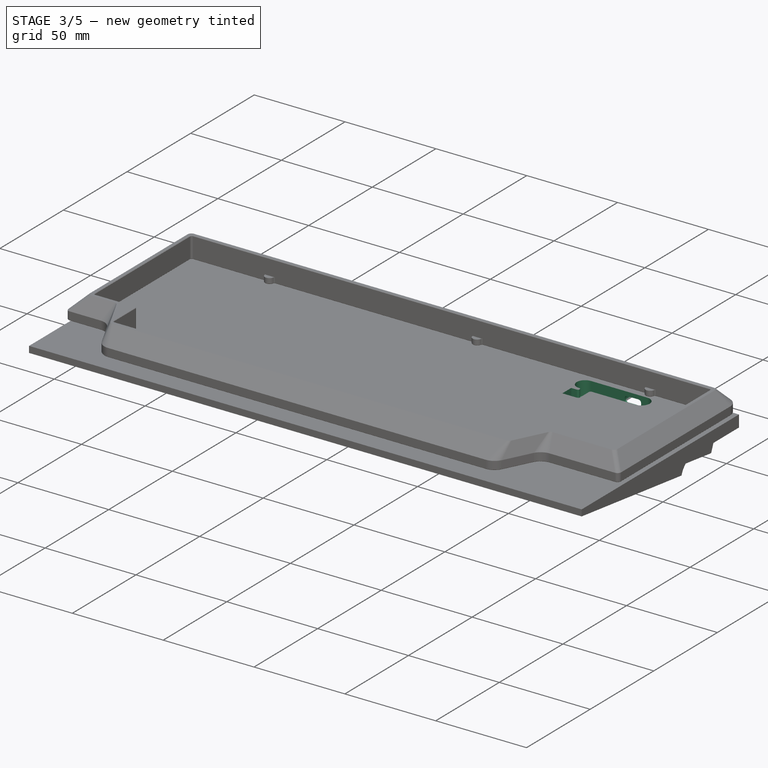
[diagram: stage 3 of 5 — iso view after this stage's code; geometry added in this stage tinted green]
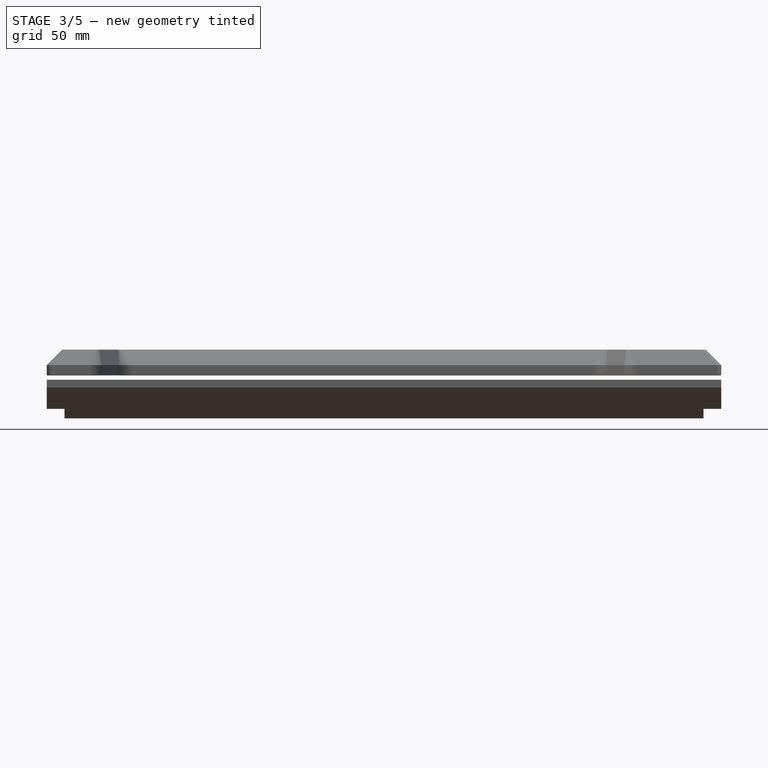
[diagram: stage 3 of 5 — front view after this stage's code; geometry added in this stage tinted green]
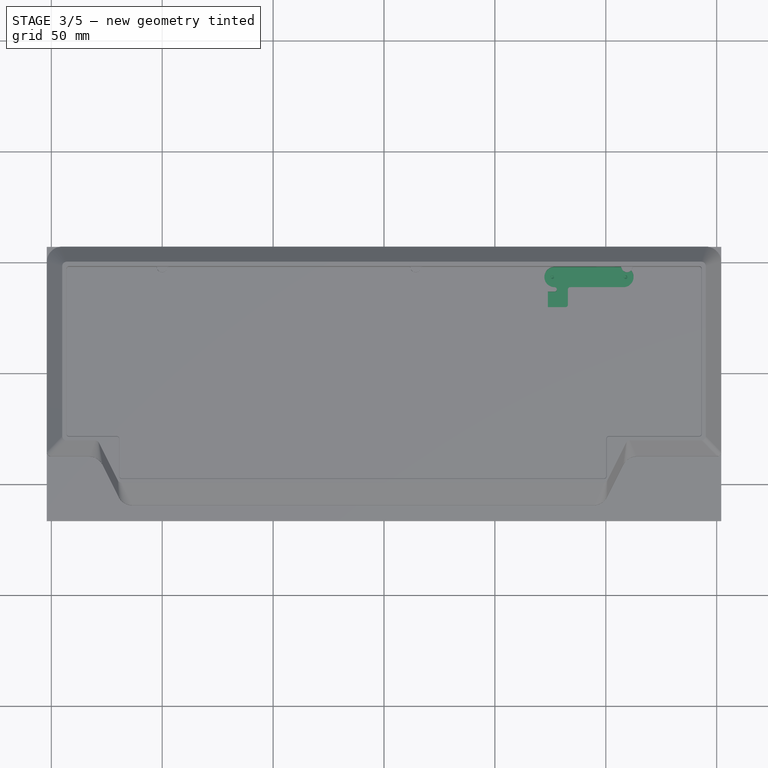
[diagram: stage 3 of 5 — top view after this stage's code; geometry added in this stage tinted green]
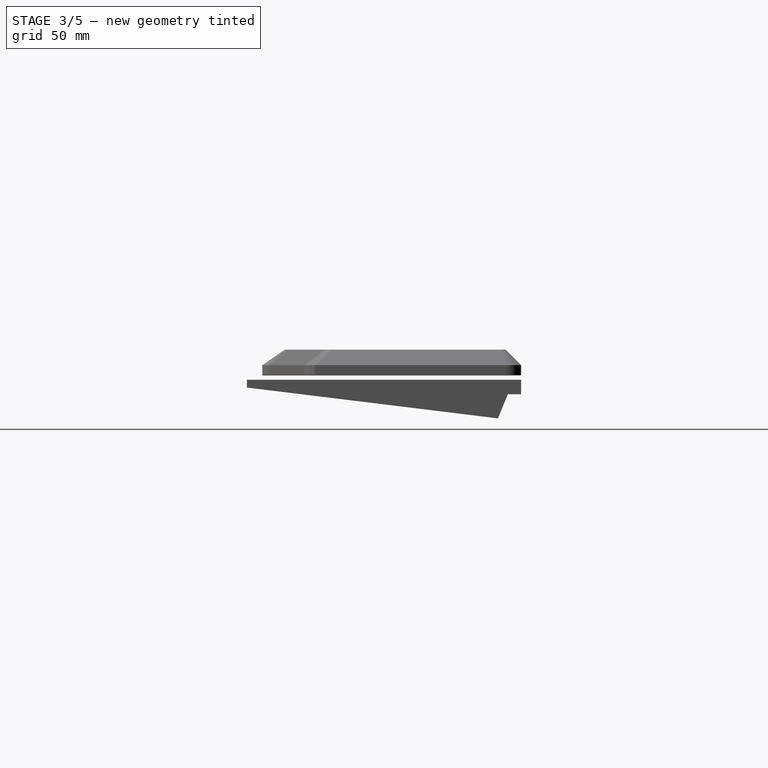
[diagram: stage 3 of 5 — right view after this stage's code; geometry added in this stage tinted green]
FEATURE [Sketcher::SketchObject] Sketch005
  ExternalGeometry = -> [Pad004]
  FullyConstrained = true
  MapMode = 5
  Placement = pos=(0,0,-2) rot=(0,0,1;0rad)
  Support = -> [Pad004]
  expr: Constraints[13] = 40 + Spreadsheet.err
  expr: Constraints[22] = Spreadsheet.kp * Spreadsheet.br / 2 + Spreadsheet.cw + Spreadsheet.err - 9
  expr: Constraints[26] = Spreadsheet.kp * 5.25
  expr: Constraints[3] = 4.5 + Spreadsheet.err / 2
  sketch-geometry (10):
    g0: LineSegment StartX=76.9125 StartY=47.825 StartZ=0 EndX=107.913 EndY=47.825 EndZ=0
    g1: ArcOfCircle CenterX=107.913 CenterY=43.225 CenterZ=0 NormalX=0 NormalY=0 NormalZ=1 AngleXU=0 Radius=4.6 StartAngle=4.71239 EndAngle=7.85398
    g2: LineSegment StartX=107.913 StartY=38.625 StartZ=0 EndX=76.9125 EndY=38.625 EndZ=0
    g3: ArcOfCircle CenterX=76.9125 CenterY=43.225 CenterZ=0 NormalX=0 NormalY=0 NormalZ=1 AngleXU=0 Radius=4.6 StartAngle=1.5708 EndAngle=4.71239
    g4: Circle CenterX=108.913 CenterY=43.225 CenterZ=0 NormalX=0 NormalY=0 NormalZ=1 AngleXU=0 Radius=1.6
    g5: Circle CenterX=75.9125 CenterY=43.225 CenterZ=0 NormalX=0 NormalY=0 NormalZ=1 AngleXU=0 Radius=1.6
    g6: LineSegment StartX=72.3125 StartY=43.225 StartZ=0 EndX=112.513 EndY=43.225 EndZ=0
    g7: LineSegment StartX=75.9125 StartY=43.225 StartZ=0 EndX=76.9125 EndY=47.825 EndZ=0
    g8: LineSegment StartX=108.913 StartY=43.225 StartZ=0 EndX=107.913 EndY=38.625 EndZ=0
    g9: GeomPoint X=100.013 Y=43.225 Z=0
  constraints (27):
    c: Tangent(g0,g1) = 1.5708
    c: Horizontal(g2)
    c: Tangent(g3,g0) = 1.5708
    c: Radius(g1) = 4.6
    c: Diameter(g4) = 3.2
    c: Diameter(g5) = 3.2
    c: DistanceX(g5,g4) = 33
    c: Tangent(g3,g2) = 1.5708
    c: Tangent(g1,g2) = 1.5708
    c: PointOnObject(g6,g3)
    c: PointOnObject(g6,g1)
    c: Horizontal(g6)
    c: PointOnObject(g3,g6)
    c: Distance(g6) = 40.2
    c: PointOnObject(g5,g6)
    c: PointOnObject(g4,g6)
    c: Horizontal(g0)
    c: Coincident(g7,g5)
    c: Coincident(g7,g0)
    c: Coincident(g8,g4)
    c: Coincident(g8,g1)
    c: Equal(g7,g8)
    c: Distance(g-1,g0) = 47.825
    c: Distance(g0) = 31
    c: PointOnObject(g9,g6)
    c: Distance(g4,g9) = 8.9
    c: DistanceX(g-2,g9) = 100.013
FEATURE [PartDesign::Pocket] Pocket
  BaseFeature = -> Pad004
  Direction = (0,0,-1)
  Length = 7.8
  Length2 = 100
  Profile = -> Sketch005
  ReferenceAxis = -> Sketch005 [N_Axis]
  Refine = true
  Type = 0
FEATURE [Sketcher::SketchObject] Sketch030
  FullyConstrained = true
  MapMode = 5
  Placement = pos=(0,0,-9.8) rot=(0,0,1;0rad)
  Support = -> [Pocket]
  expr: Constraints[8] = 4.5 + Spreadsheet.err / 2
  expr: Constraints[9] = Spreadsheet.kp * Spreadsheet.br / 2 - Spreadsheet.cw
  sketch-geometry (10):
    g0: ArcOfCircle CenterX=7.9 CenterY=43.225 CenterZ=0 NormalX=0 NormalY=0 NormalZ=1 AngleXU=0 Radius=4.6 StartAngle=4.71239 EndAngle=7.85398
    g1: ArcOfCircle CenterX=7.9 CenterY=46.825 CenterZ=0 NormalX=0 NormalY=0 NormalZ=1 AngleXU=0 Radius=1 StartAngle=4.98334 EndAngle=7.85398
    g2: ArcOfCircle CenterX=8.9 CenterY=43.225 CenterZ=0 NormalX=0 NormalY=0 NormalZ=1 AngleXU=0 Radius=2.73631 StartAngle=1.84174 EndAngle=4.44144
    g3: ArcOfCircle CenterX=7.9 CenterY=39.625 CenterZ=0 NormalX=0 NormalY=0 NormalZ=1 AngleXU=0 Radius=1 StartAngle=4.71239 EndAngle=7.58303
    g4: LineSegment StartX=7.9 StartY=38.625 StartZ=0 EndX=0 EndY=38.625 EndZ=0
    g5: LineSegment StartX=7.9 StartY=38.625 StartZ=0 EndX=7.9 EndY=47.825 EndZ=0
    g6: LineSegment StartX=7.9 StartY=47.825 StartZ=0 EndX=-23.1 EndY=47.825 EndZ=0
    g7: LineSegment StartX=-23.1 StartY=47.825 StartZ=0 EndX=-23.1 EndY=43.225 EndZ=0
    g8: LineSegment StartX=-23.1 StartY=43.225 StartZ=0 EndX=-24.1 EndY=43.225 EndZ=0
    g9: LineSegment StartX=7.9 StartY=43.225 StartZ=0 EndX=8.9 EndY=43.225 EndZ=0
  constraints (32):
    c: Coincident(g1,g0)
    c: Coincident(g2,g1)
    c: Coincident(g3,g2)
    c: Coincident(g3,g0)
    c: Tangent(g2,g1,g1) = 1.5708
    c: Tangent(g2,g3,g2) = 1.5708
    c: Tangent(g1,g0,g0) = -1.5708
    c: Tangent(g3,g0,g0) = -1.5708
    c: Radius(g0) = 4.6
    c: DistanceY(g-1,g0) = 38.625
    c: DistanceX(g-2,g2) = 8.9
    c: Equal(g3,g1)
    c: Coincident(g4,g0)
    c: PointOnObject(g4,g-2)
    c: Horizontal(g4)
    c: Coincident(g5,g0)
    c: Coincident(g5,g0)
    c: PointOnObject(g0,g5)
    c: Vertical(g5)
    c: Coincident(g6,g0)
    c: Horizontal(g6)
    c: Distance(g6) = 31
    c: Coincident(g7,g6)
    c: Vertical(g7)
    c: Coincident(g8,g7)
    c: Horizontal(g8)
    c: Coincident(g9,g0)
    c: Coincident(g9,g2)
    c: Equal(g9,g8)
    c: PointOnObject(g8,g9)
    c: Radius(g3) = 1
    c: Distance(g2,g8) = 33
FEATURE [PartDesign::Pad] Pad006
  BaseFeature = -> Pocket
  Direction = (0,0,1)
  Length = 0.5
  Length2 = 10
  Profile = -> Sketch030
  ReferenceAxis = -> Sketch030 [N_Axis]
  Type = 0
FEATURE [Sketcher::SketchObject] Sketch031
  FullyConstrained = true
  MapMode = 5
  Placement = pos=(0,0,-9.8) rot=(0,0,1;0rad)
  Support = -> [Pad006]
  expr: Constraints[14] = Spreadsheet.kp * Spreadsheet.br / 2 - Spreadsheet.cw
  expr: Constraints[17] = 4.5 + Spreadsheet.err / 2
  sketch-geometry (10):
    g0: LineSegment StartX=8.9 StartY=43.225 StartZ=0 EndX=7.9 EndY=43.225 EndZ=0
    g1: LineSegment StartX=7.9 StartY=43.225 StartZ=0 EndX=7.9 EndY=38.625 EndZ=0
    g2: LineSegment StartX=7.9 StartY=38.625 StartZ=0 EndX=-23.1 EndY=38.625 EndZ=0
    g3: LineSegment StartX=-23.1 StartY=38.625 StartZ=0 EndX=-23.1 EndY=43.225 EndZ=0
    g4: LineSegment StartX=-23.1 StartY=43.225 StartZ=0 EndX=-24.1 EndY=43.225 EndZ=0
    g5: ArcOfCircle CenterX=-23.1 CenterY=43.225 CenterZ=0 NormalX=0 NormalY=0 NormalZ=1 AngleXU=0 Radius=4.6 StartAngle=1.5708 EndAngle=4.71239
    g6: LineSegment StartX=-23.1 StartY=43.225 StartZ=0 EndX=-23.1 EndY=47.825 EndZ=0
    g7: ArcOfCircle CenterX=-24.1 CenterY=43.225 CenterZ=0 NormalX=0 NormalY=0 NormalZ=1 AngleXU=0 Radius=2.73631 StartAngle=4.98334 EndAngle=7.58303
    g8: ArcOfCircle CenterX=-23.1 CenterY=46.825 CenterZ=0 NormalX=0 NormalY=0 NormalZ=1 AngleXU=0 Radius=1 StartAngle=1.5708 EndAngle=4.44144
    g9: ArcOfCircle CenterX=-23.1 CenterY=39.625 CenterZ=0 NormalX=0 NormalY=0 NormalZ=1 AngleXU=0 Radius=1 StartAngle=1.84174 EndAngle=4.71239
  constraints (31):
    c: Horizontal(g0)
    c: Coincident(g1,g0)
    c: Vertical(g1)
    c: Coincident(g2,g1)
    c: Horizontal(g2)
    c: Coincident(g3,g2)
    c: Vertical(g3)
    c: Coincident(g4,g3)
    c: Horizontal(g4)
    c: Distance(g4,g0) = 33
    c: Distance(g2) = 31
    c: DistanceX(g-2,g0) = 8.9
    c: Equal(g0,g4)
    c: PointOnObject(g0,g4)
    c: DistanceY(g-1,g1) = 38.625
    c: Coincident(g5,g3)
    c: Coincident(g5,g2)
    c: Radius(g5) = 4.6
    c: Coincident(g6,g5)
    c: Coincident(g6,g5)
    c: Vertical(g6)
    c: Coincident(g7,g4)
    c: Coincident(g8,g5)
    c: Coincident(g9,g7)
    c: Coincident(g9,g5)
    c: Tangent(g5,g9,g5) = -1.5708
    c: Tangent(g9,g7,g7) = 1.5708
    c: Tangent(g8,g5,g5) = -1.5708
    c: Coincident(g8,g7)
    c: Tangent(g8,g7,g7) = 1.5708
    c: Radius(g9) = 1
FEATURE [PartDesign::Pad] Pad007
  BaseFeature = -> Pad006
  Direction = (0,0,1)
  Length = 0.5
  Length2 = 10
  Profile = -> Sketch031
  ReferenceAxis = -> Sketch031 [N_Axis]
  Type = 0
FEATURE [Sketcher::SketchObject] Sketch032
  FullyConstrained = false
  MapMode = 5
  Placement = pos=(0,0,-9.8) rot=(0,0,1;0rad)
  Support = -> [Pad007]
  expr: Constraints[3] = Spreadsheet.kp * Spreadsheet.br / 2 - Spreadsheet.cw + 4.5 + Spreadsheet.err / 2
  expr: Constraints[7] = Spreadsheet.kp * 5.25
  sketch-geometry (4):
    g0: Circle CenterX=108.913 CenterY=43.225 CenterZ=0 NormalX=0 NormalY=0 NormalZ=1 AngleXU=0 Radius=2.82712
    g1: Circle CenterX=75.9125 CenterY=43.225 CenterZ=0 NormalX=0 NormalY=0 NormalZ=1 AngleXU=0 Radius=2.47955
    g2: LineSegment StartX=75.9125 StartY=43.225 StartZ=0 EndX=108.913 EndY=43.225 EndZ=0
    g3: GeomPoint X=100.013 Y=43.225 Z=0
  constraints (8):
    c: Coincident(g2,g1)
    c: Coincident(g2,g0)
    c: Horizontal(g2)
    c: Distance(g-1,g2) = 43.225
    c: Distance(g0,g1) = 33
    c: PointOnObject(g3,g2)
    c: Distance(g3,g0) = 8.9
    c: DistanceX(g-2,g3) = 100.013
FEATURE [PartDesign::Hole] Hole
  BaseFeature = -> Pad007
  CustomThreadClearance = 0
  Depth = 4
  DepthType = 0
  Diameter = 1.6
  DrillForDepth = false
  DrillPoint = 1
  DrillPointAngle = 118
  HoleCutCountersinkAngle = 90
  HoleCutCustomValues = false
  HoleCutDepth = 0
  HoleCutDiameter = 6.1
  HoleCutType = 0
  ModelThread = false
  Profile = -> Sketch032
  Tapered = false
  TaperedAngle = 90
  ThreadClass = 0
  ThreadDepth = 4
  ThreadDepthType = 0
  ThreadDirection = 0
  ThreadFit = 0
  ThreadSize = 6
  ThreadType = 1
  Threaded = true
  UseCustomThreadClearance = false
FEATURE [Sketcher::SketchObject] Sketch033
  FullyConstrained = false
  MapMode = 5
  Placement = pos=(0,47.825,0) rot=(1,0,0;1.5708rad)
  Support = -> [Hole]
  expr: Constraints[22] = -2 - 7.8 + 0.5 + 1.6
  expr: Constraints[31] = Spreadsheet.kp * 5.25
  sketch-geometry (10):
    g0: ArcOfCircle CenterX=103.113 CenterY=-5.6 CenterZ=0 NormalX=0 NormalY=0 NormalZ=1 AngleXU=0 Radius=1.4 StartAngle=0 EndAngle=1.5708
    g1: ArcOfCircle CenterX=103.113 CenterY=-6.3 CenterZ=0 NormalX=0 NormalY=0 NormalZ=1 AngleXU=0 Radius=1.4 StartAngle=4.71239 EndAngle=6.28319
    g2: ArcOfCircle CenterX=96.9125 CenterY=-6.3 CenterZ=0 NormalX=0 NormalY=0 NormalZ=1 AngleXU=0 Radius=1.4 StartAngle=3.14159 EndAngle=4.71239
    g3: ArcOfCircle CenterX=96.9125 CenterY=-5.6 CenterZ=0 NormalX=0 NormalY=0 NormalZ=1 AngleXU=0 Radius=1.4 StartAngle=1.5708 EndAngle=3.14159
    g4: LineSegment StartX=96.9125 StartY=-4.2 StartZ=0 EndX=103.113 EndY=-4.2 EndZ=0
    g5: LineSegment StartX=103.113 StartY=-7.7 StartZ=0 EndX=96.9125 EndY=-7.7 EndZ=0
    g6: LineSegment StartX=95.5125 StartY=-6.3 StartZ=0 EndX=95.5125 EndY=-5.6 EndZ=0
    g7: LineSegment StartX=104.513 StartY=-6.3 StartZ=0 EndX=104.513 EndY=-5.6 EndZ=0
    g8: LineSegment StartX=103.113 StartY=-7.7 StartZ=0 EndX=100.013 EndY=-6.31343 EndZ=0
    g9: LineSegment StartX=100.013 StartY=-6.31343 StartZ=0 EndX=96.9125 EndY=-7.7 EndZ=0
  constraints (32):
    c: Coincident(g4,g3)
    c: Coincident(g4,g0)
    c: Horizontal(g4)
    c: Coincident(g5,g1)
    c: Coincident(g5,g2)
    c: Coincident(g6,g2)
    c: Coincident(g6,g3)
    c: Vertical(g6)
    c: Coincident(g7,g1)
    c: Coincident(g7,g0)
    c: Vertical(g7)
    c: Equal(g3,g2)
    c: Equal(g2,g1)
    c: Equal(g1,g0)
    c: Tangent(g0,g7,g0) = -1.5708
    c: Tangent(g7,g1,g1) = -1.5708
    c: Tangent(g5,g1,g1) = 1.5708
    c: Tangent(g2,g5,g2) = 1.5708
    c: Tangent(g6,g2,g2) = 1.5708
    c: Tangent(g3,g6,g3) = 1.5708
    c: Tangent(g3,g4,g3) = 1.5708
    c: Tangent(g4,g0,g0) = 1.5708
    c: DistanceY(g-1,g1) = -7.7
    c: Distance(g0,g1) = 3.5
    c: Distance(g2,g1) = 9
    c: Radius(g0) = 1.4
    c: Horizontal(g5)
    c: Coincident(g8,g1)
    c: Coincident(g9,g8)
    c: Coincident(g9,g2)
    c: Equal(g9,g8)
    c: DistanceX(g-2,g8) = 100.013
FEATURE [PartDesign::Pocket] Pocket007
  BaseFeature = -> Hole
  Direction = (0,1,-2e-16)
  Length = 0
  Length2 = 5
  Profile = -> Sketch033
  ReferenceAxis = -> Sketch033 [N_Axis]
  Type = 3
  UpToFace = -> Hole [Face2]
FEATURE [Sketcher::SketchObject] Sketch034
  FullyConstrained = false
  MapMode = 5
  Placement = pos=(0,56.825,0) rot=(0,0.707107,0.707107;3.14159rad)
  Support = -> [Pocket007]
  expr: Constraints[31] = -Spreadsheet.kp * 5.25
  sketch-geometry (10):
    g0: ArcOfCircle CenterX=-95.7625 CenterY=-4.7 CenterZ=0 NormalX=0 NormalY=0 NormalZ=1 AngleXU=0 Radius=2 StartAngle=2e-16 EndAngle=1.5708
    g1: ArcOfCircle CenterX=-95.7625 CenterY=-7.2 CenterZ=0 NormalX=0 NormalY=0 NormalZ=1 AngleXU=0 Radius=2 StartAngle=4.71239 EndAngle=6.28319
    g2: ArcOfCircle CenterX=-104.263 CenterY=-7.2 CenterZ=0 NormalX=0 NormalY=0 NormalZ=1 AngleXU=0 Radius=2 StartAngle=3.14159 EndAngle=4.71239
    g3: ArcOfCircle CenterX=-104.263 CenterY=-4.7 CenterZ=0 NormalX=0 NormalY=0 NormalZ=1 AngleXU=0 Radius=2 StartAngle=1.5708 EndAngle=3.14159
    g4: LineSegment StartX=-104.263 StartY=-2.7 StartZ=0 EndX=-95.7625 EndY=-2.7 EndZ=0
    g5: LineSegment StartX=-93.7625 StartY=-4.7 StartZ=0 EndX=-93.7625 EndY=-7.2 EndZ=0
    g6: LineSegment StartX=-95.7625 StartY=-9.2 StartZ=0 EndX=-104.263 EndY=-9.2 EndZ=0
    g7: LineSegment StartX=-106.263 StartY=-7.2 StartZ=0 EndX=-106.263 EndY=-4.7 EndZ=0
    g8: LineSegment StartX=-104.263 StartY=-9.2 StartZ=0 EndX=-100.013 EndY=-6.58967 EndZ=0
    g9: LineSegment StartX=-100.013 StartY=-6.58967 StartZ=0 EndX=-95.7625 EndY=-9.2 EndZ=0
  constraints (32):
    c: Coincident(g4,g3)
    c: Coincident(g4,g0)
    c: Horizontal(g4)
    c: Coincident(g5,g1)
    c: Vertical(g5)
    c: Coincident(g6,g1)
    c: Coincident(g7,g2)
    c: Coincident(g7,g3)
    c: Vertical(g7)
    c: Coincident(g6,g2)
    c: Coincident(g0,g5)
    c: Tangent(g0,g5,g0) = 1.5708
    c: Tangent(g5,g1,g1) = 1.5708
    c: Tangent(g6,g1,g1) = 1.5708
    c: Tangent(g2,g6,g2) = 1.5708
    c: Tangent(g7,g2,g2) = 1.5708
    c: Tangent(g3,g7,g3) = 1.5708
    c: Tangent(g3,g4,g3) = 1.5708
    c: Tangent(g4,g0,g0) = 1.5708
    c: Equal(g1,g0)
    c: Equal(g0,g3)
    c: Equal(g3,g2)
    c: Distance(g3,g2) = 6.5
    c: Distance(g2,g1) = 12.5
    c: Radius(g1) = 2
    c: DistanceY(g-1,g0) = -2.7
    c: Horizontal(g6)
    c: Coincident(g8,g2)
    c: Coincident(g9,g8)
    c: Coincident(g9,g1)
    c: Equal(g8,g9)
    c: DistanceX(g-2,g8) = -100.013
FEATURE [PartDesign::Pocket] Pocket008
  BaseFeature = -> Pocket007
  Direction = (0,-1,-2e-16)
  Length = 0
  Length2 = 5
  Offset = -1
  Profile = -> Sketch034
  ReferenceAxis = -> Sketch034 [N_Axis]
  Type = 3
  UpToFace = -> Pocket007 [Face9]
FEATURE [Sketcher::SketchObject] Sketch035
  FullyConstrained = true
  MapMode = 5
  Placement = pos=(0,0,-2) rot=(0,0,1;0rad)
  Support = -> [Pocket008]
  expr: Constraints[16] = Spreadsheet.kp * Spreadsheet.br / 2 - Spreadsheet.cw
  expr: Constraints[18] = 8.9 - 33 + 3.5 - 3.5 + (33 - 31) / 2 + Spreadsheet.kp * 5.25
  sketch-geometry (8):
    g0: ArcOfCircle CenterX=76.9125 CenterY=37.625 CenterZ=0 NormalX=0 NormalY=0 NormalZ=1 AngleXU=0 Radius=1 StartAngle=4.71239 EndAngle=7.85398
    g1: ArcOfCircle CenterX=83.9125 CenterY=37.625 CenterZ=0 NormalX=0 NormalY=0 NormalZ=1 AngleXU=0 Radius=1 StartAngle=1.5708 EndAngle=3.14159
    g2: ArcOfCircle CenterX=81.9125 CenterY=30.625 CenterZ=0 NormalX=0 NormalY=0 NormalZ=1 AngleXU=0 Radius=1 StartAngle=4.71239 EndAngle=6.28319
    g3: LineSegment StartX=82.9125 StartY=37.625 StartZ=0 EndX=82.9125 EndY=30.625 EndZ=0
    g4: LineSegment StartX=76.9125 StartY=36.625 StartZ=0 EndX=73.9125 EndY=36.625 EndZ=0
    g5: LineSegment StartX=73.9125 StartY=36.625 StartZ=0 EndX=73.9125 EndY=29.625 EndZ=0
    g6: LineSegment StartX=73.9125 StartY=29.625 StartZ=0 EndX=81.9125 EndY=29.625 EndZ=0
    g7: LineSegment StartX=76.9125 StartY=38.625 StartZ=0 EndX=83.9125 EndY=38.625 EndZ=0
  constraints (27):
    c: Coincident(g3,g1)
    c: Coincident(g3,g2)
    c: Coincident(g4,g0)
    c: Vertical(g5)
    c: Coincident(g6,g2)
    c: Coincident(g7,g0)
    c: Coincident(g7,g1)
    c: Horizontal(g7)
    c: Tangent(g4,g0,g0) = 1.5708
    c: Horizontal(g4)
    c: Tangent(g1,g3,g1) = -1.5708
    c: Tangent(g3,g2,g2) = 1.5708
    c: Tangent(g6,g2,g2) = -1.5708
    c: Horizontal(g6)
    c: Vertical(g3)
    c: Tangent(g1,g7,g1) = 1.5708
    c: DistanceY(g-1,g1) = 38.625
    c: Distance(g7) = 7
    c: DistanceX(g-2,g0) = 76.9125
    c: Tangent(g0,g7,g0) = 1.5708
    c: Equal(g1,g2)
    c: Radius(g1) = 1
    c: Distance(g6,g4) = 7
    c: Distance(g0,g5) = 3
    c: Coincident(g5,g6)
    c: Coincident(g5,g4)
    c: Equal(g0,g1)
FEATURE [PartDesign::Pocket] Pocket009
  BaseFeature = -> Pocket008
  Direction = (0,0,-1)
  Length = 7.8
  Length2 = 5
  Profile = -> Sketch035
  ReferenceAxis = -> Sketch035 [N_Axis]
  Type = 0
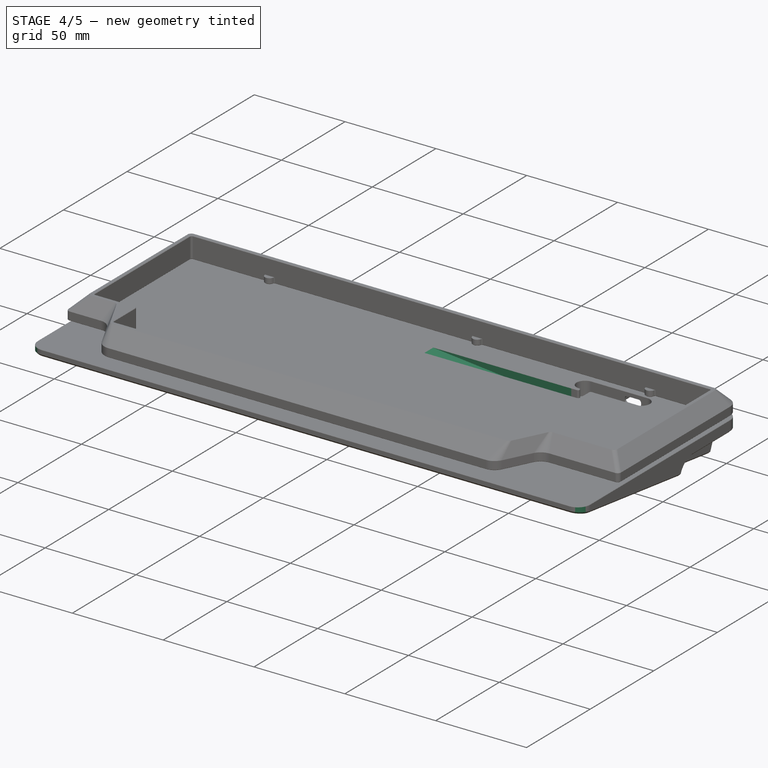
[diagram: stage 4 of 5 — iso view after this stage's code; geometry added in this stage tinted green]
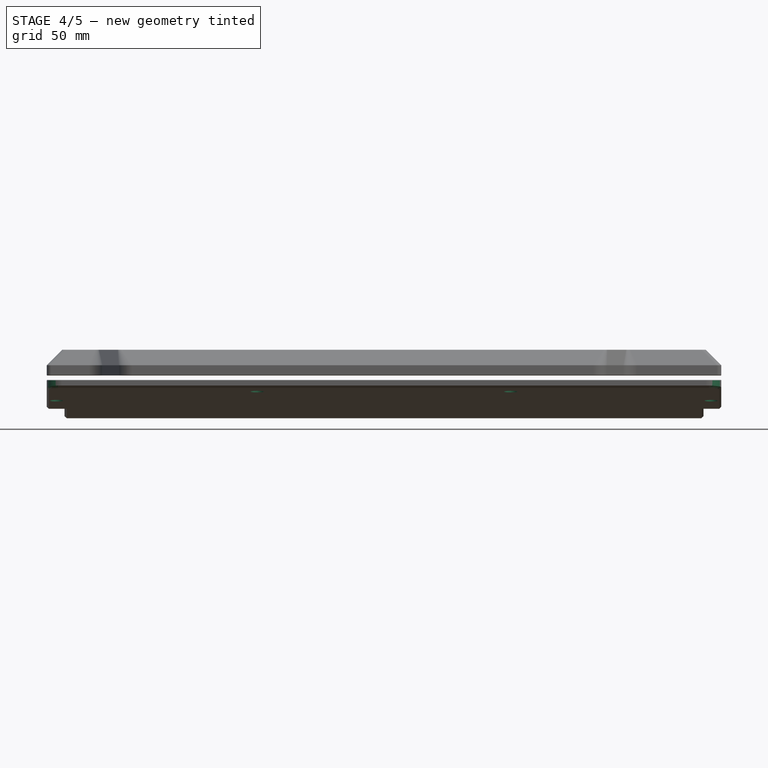
[diagram: stage 4 of 5 — front view after this stage's code; geometry added in this stage tinted green]
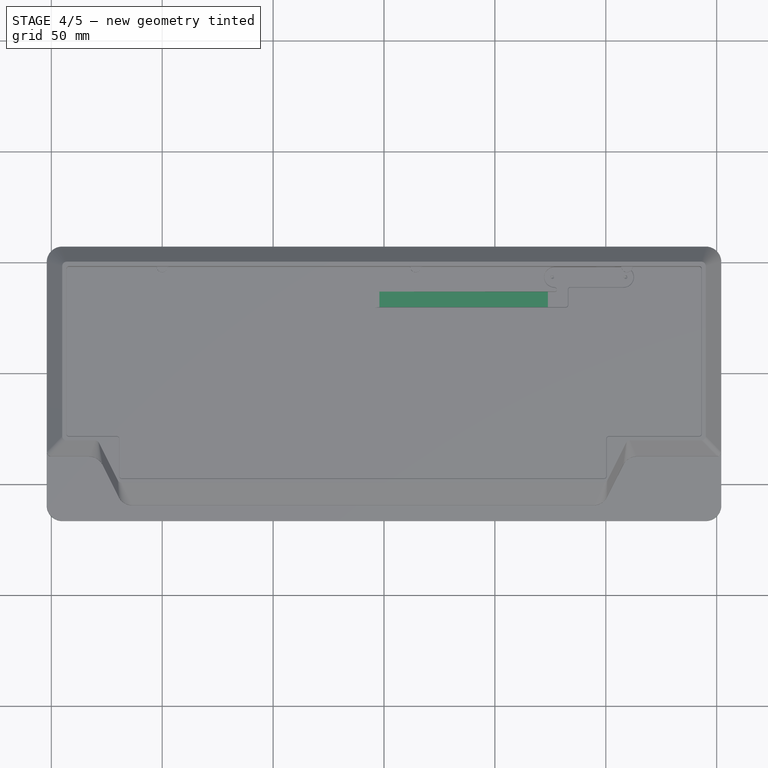
[diagram: stage 4 of 5 — top view after this stage's code; geometry added in this stage tinted green]
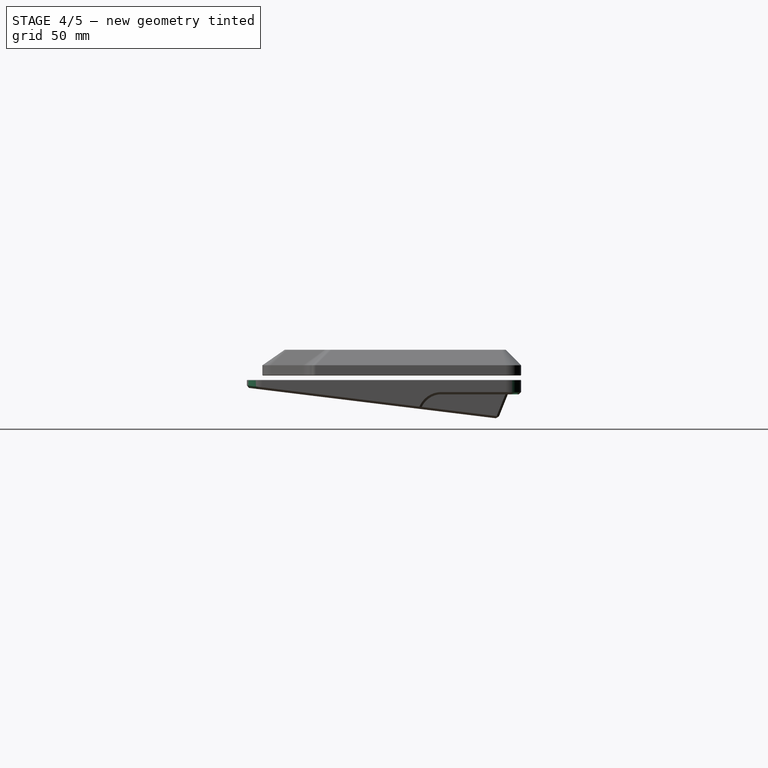
[diagram: stage 4 of 5 — right view after this stage's code; geometry added in this stage tinted green]
FEATURE [Sketcher::SketchObject] Sketch036
  FullyConstrained = true
  MapMode = 5
  Placement = pos=(73.9125,0,0) rot=(0.57735,0.57735,0.57735;2.0944rad)
  Support = -> [Pocket009]
  expr: Constraints[10] = Spreadsheet.kp * Spreadsheet.br / 2 - Spreadsheet.cw - 2
  sketch-geometry (4):
    g0: LineSegment StartX=29.625 StartY=-2 StartZ=0 EndX=36.625 EndY=-2 EndZ=0
    g1: LineSegment StartX=36.625 StartY=-2 StartZ=0 EndX=36.625 EndY=-9.8 EndZ=0
    g2: LineSegment StartX=36.625 StartY=-9.8 StartZ=0 EndX=29.625 EndY=-9.8 EndZ=0
    g3: LineSegment StartX=29.625 StartY=-9.8 StartZ=0 EndX=29.625 EndY=-2 EndZ=0
  constraints (12):
    c: Coincident(g0,g1)
    c: Coincident(g1,g2)
    c: Coincident(g2,g3)
    c: Coincident(g3,g0)
    c: Horizontal(g0)
    c: Horizontal(g2)
    c: Vertical(g1)
    c: Vertical(g3)
    c: Distance(g0) = 7
    c: DistanceY(g-1,g0) = -2
    c: DistanceX(g-2,g0) = 36.625
    c: Distance(g1) = 7.8
FEATURE [PartDesign::Pocket] Pocket010
  BaseFeature = -> Pocket009
  Direction = (-1,0,0.1)
  Length = 80
  Length2 = 5
  Profile = -> Sketch036
  ReferenceAxis = -> Sketch036 [N_Axis]
  Type = 0
  UseCustomVector = true
FEATURE [PartDesign::Fillet] Fillet017
  Base = -> Pocket010 [Edge18,Edge29,Edge28,Edge33]
  BaseFeature = -> Pocket010
  Radius = 7
  SupportTransform = false
  UseAllEdges = false
FEATURE [PartDesign::Chamfer] Chamfer001
  Angle = 45
  Base = -> Fillet017 [Edge109,Edge133,Edge108,Edge107,Edge44,Edge22,Edge111,Edge110,Edge135,Edge38]
  BaseFeature = -> Fillet017
  ChamferType = 0
  FlipDirection = false
  Size = 1
  Size2 = 1
  SupportTransform = false
  UseAllEdges = false
FEATURE [PartDesign::Fillet] Fillet018
  Base = -> Chamfer001 [Edge53,Edge39]
  BaseFeature = -> Chamfer001
  Radius = 1
  SupportTransform = false
  UseAllEdges = false
FEATURE [PartDesign::Chamfer] Chamfer002
  Angle = 45
  Base = -> Fillet018 [Edge5,Edge10,Edge40,Edge39]
  BaseFeature = -> Fillet018
  ChamferType = 0
  FlipDirection = false
  Size = 0.2
  Size2 = 1
  SupportTransform = false
  UseAllEdges = false
  expr: Size = Spreadsheet.err
FEATURE [Sketcher::SketchObject] Sketch039
  AttachmentOffset = pos=(0,0,-1) rot=(0,0,1;0rad)
  FullyConstrained = false
  MapMode = 5
  Placement = pos=(0,0,-3) rot=(0,0,1;0rad)
  Support = -> [Chamfer002]
  expr: Constraints[25] = -Spreadsheet.kp
  expr: Constraints[26] = -Spreadsheet.kp * 3
  expr: Constraints[27] = -Spreadsheet.kp * 2
  expr: Constraints[8] = Spreadsheet.kp * Spreadsheet.br + Spreadsheet.err * 2 + Spreadsheet.cw
  expr: Constraints[9] = Spreadsheet.kp * Spreadsheet.bc + Spreadsheet.err * 2 + Spreadsheet.cw
  sketch-geometry (12):
    g0: LineSegment StartX=-147.575 StartY=52.325 StartZ=0 EndX=147.575 EndY=52.325 EndZ=0
    g1: LineSegment StartX=147.575 StartY=52.325 StartZ=0 EndX=147.575 EndY=-52.325 EndZ=0
    g2: LineSegment StartX=147.575 StartY=-52.325 StartZ=0 EndX=-147.575 EndY=-52.325 EndZ=0
    g3: LineSegment StartX=-147.575 StartY=-52.325 StartZ=0 EndX=-147.575 EndY=52.325 EndZ=0
    g4: Circle CenterX=-147.575 CenterY=52.325 CenterZ=0 NormalX=0 NormalY=0 NormalZ=1 AngleXU=0 Radius=9.33117
    g5: Circle CenterX=-38.1 CenterY=52.325 CenterZ=0 NormalX=0 NormalY=0 NormalZ=1 AngleXU=0 Radius=9.33117
    g6: Circle CenterX=38.1 CenterY=52.325 CenterZ=0 NormalX=0 NormalY=0 NormalZ=1 AngleXU=0 Radius=9.33117
    g7: Circle CenterX=147.575 CenterY=-19.05 CenterZ=0 NormalX=0 NormalY=0 NormalZ=1 AngleXU=0 Radius=9.33117
    g8: Circle CenterX=-147.575 CenterY=-19.05 CenterZ=0 NormalX=0 NormalY=0 NormalZ=1 AngleXU=0 Radius=9.33117
    g9: Circle CenterX=-57.15 CenterY=-52.325 CenterZ=0 NormalX=0 NormalY=0 NormalZ=1 AngleXU=0 Radius=9.33117
    g10: Circle CenterX=57.15 CenterY=-52.325 CenterZ=0 NormalX=0 NormalY=0 NormalZ=1 AngleXU=0 Radius=9.33117
    g11: Circle CenterX=147.575 CenterY=52.325 CenterZ=0 NormalX=0 NormalY=0 NormalZ=1 AngleXU=0 Radius=9.33117
  constraints (28):
    c: Coincident(g0,g1)
    c: Coincident(g1,g2)
    c: Coincident(g2,g3)
    c: Coincident(g3,g0)
    c: Horizontal(g2)
    c: Vertical(g1)
    c: Symmetric(g2,g0,g-1)
    c: Symmetric(g0,g0,g-2)
    c: Distance(g3) = 104.65
    c: Distance(g0) = 295.15
    c: Coincident(g4,g0)
    c: PointOnObject(g5,g0)
    c: PointOnObject(g8,g3)
    c: PointOnObject(g9,g2)
    c: Equal(g11,g4)
    c: Equal(g4,g5)
    c: Equal(g5,g6)
    c: Equal(g6,g7)
    c: Equal(g7,g10)
    c: Equal(g10,g9)
    c: Equal(g9,g8)
    c: Symmetric(g0,g11,g-2)
    c: Symmetric(g5,g6,g-2)
    c: Symmetric(g8,g7,g-2)
    c: Symmetric(g10,g9,g-2)
    c: DistanceY(g-1,g8) = -19.05
    c: DistanceX(g-2,g9) = -57.15
    c: DistanceX(g-2,g5) = -38.1
FEATURE [PartDesign::Hole] Hole004
  BaseFeature = -> Chamfer002
  CustomThreadClearance = 0
  Depth = 25
  DepthType = 0
  Diameter = 6
  DrillForDepth = false
  DrillPoint = 1
  DrillPointAngle = 118
  HoleCutCountersinkAngle = 90
  HoleCutCustomValues = false
  HoleCutDepth = 0
  HoleCutDiameter = 6.1
  HoleCutType = 0
  ModelThread = false
  Profile = -> Sketch039
  Tapered = false
  TaperedAngle = 90
  ThreadClass = 0
  ThreadDepth = 25
  ThreadDepthType = 0
  ThreadDirection = 0
  ThreadFit = 0
  ThreadSize = 0
  ThreadType = 0
  Threaded = false
  UseCustomThreadClearance = false
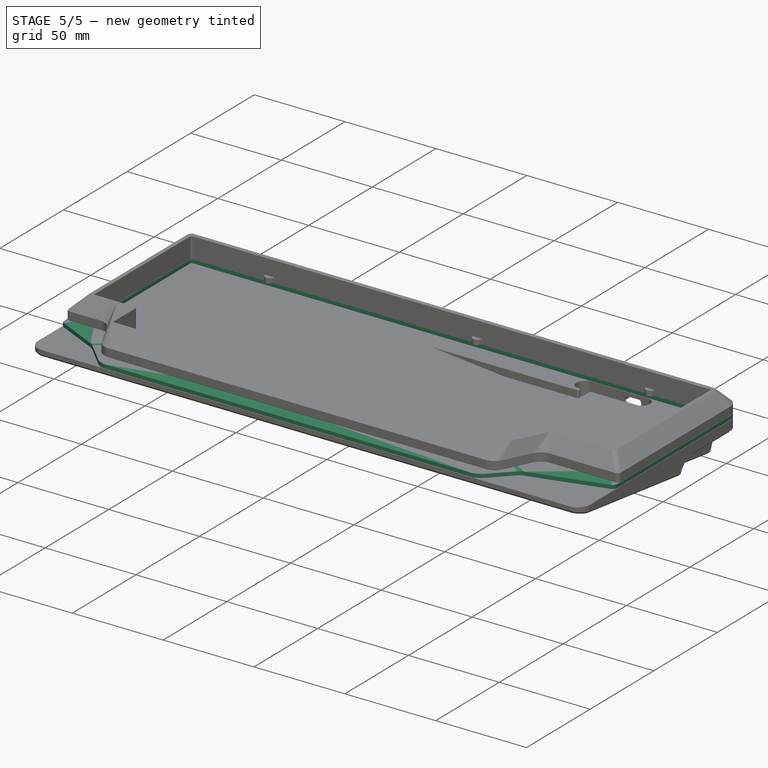
[diagram: stage 5 of 5 — iso view after this stage's code; geometry added in this stage tinted green]
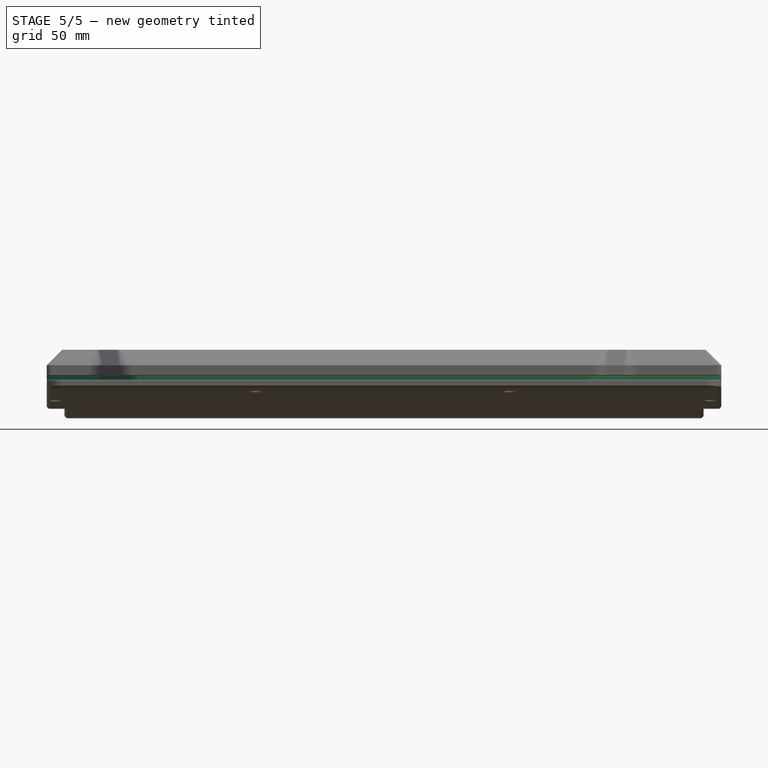
[diagram: stage 5 of 5 — front view after this stage's code; geometry added in this stage tinted green]
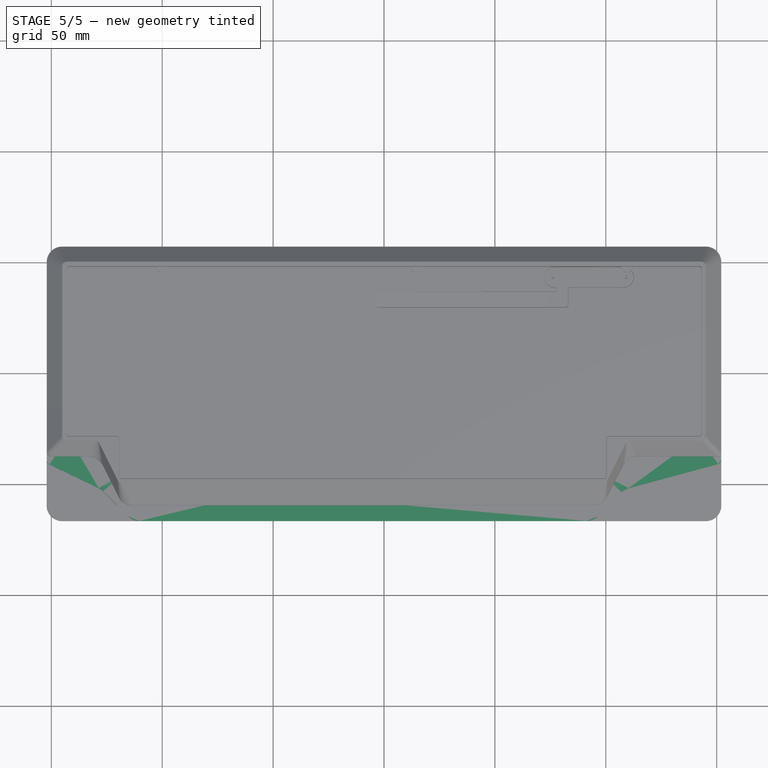
[diagram: stage 5 of 5 — top view after this stage's code; geometry added in this stage tinted green]
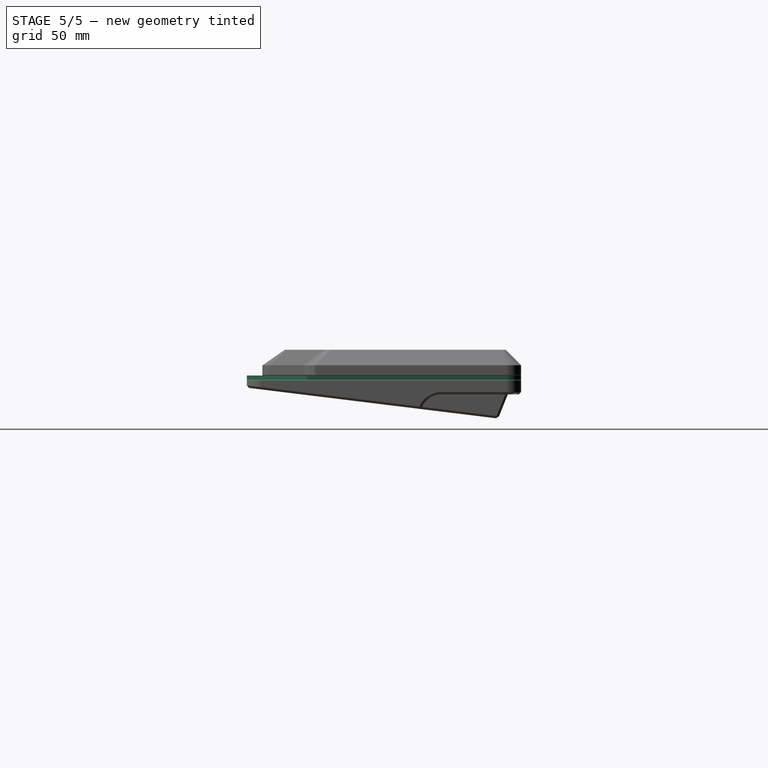
[diagram: stage 5 of 5 — right view after this stage's code; geometry added in this stage tinted green]
FEATURE [Sketcher::SketchObject] Sketch001
  FullyConstrained = true
  MapMode = 5
  Support = -> [XY_Plane003]
  expr: Constraints[22] = Spreadsheet.kp * Spreadsheet.bc + (Spreadsheet.err + Spreadsheet.cw) * 2
  expr: Constraints[24] = Spreadsheet.kp * Spreadsheet.br + (Spreadsheet.err + Spreadsheet.cw) * 2
  expr: Constraints[30] = Spreadsheet.cw
  expr: Constraints[31] = Spreadsheet.cw
  expr: Constraints[32] = Spreadsheet.cw
  expr: Constraints[33] = Spreadsheet.kp
  expr: Constraints[34] = Spreadsheet.kp * 1.25
  expr: Constraints[35] = Spreadsheet.kp * 2.25
  expr: Constraints[36] = Spreadsheet.cw
  expr: Constraints[55] = Spreadsheet.kp / 4 * 3
  sketch-geometry (22):
    g0: LineSegment StartX=143.075 StartY=47.825 StartZ=0 EndX=-143.075 EndY=47.825 EndZ=0
    g1: LineSegment StartX=-143.075 StartY=47.825 StartZ=0 EndX=-143.075 EndY=-28.775 EndZ=0
    g2: LineSegment StartX=-143.075 StartY=-28.775 StartZ=0 EndX=-119.262 EndY=-28.775 EndZ=0
    g3: LineSegment StartX=-119.262 StartY=-28.775 StartZ=0 EndX=-119.262 EndY=-47.825 EndZ=0
    g4: LineSegment StartX=-119.262 StartY=-47.825 StartZ=0 EndX=100.213 EndY=-47.825 EndZ=0
    g5: LineSegment StartX=100.212 StartY=-47.825 StartZ=0 EndX=100.212 EndY=-28.775 EndZ=0
    g6: LineSegment StartX=100.212 StartY=-28.775 StartZ=0 EndX=143.075 EndY=-28.775 EndZ=0
    g7: LineSegment StartX=143.075 StartY=-28.775 StartZ=0 EndX=143.075 EndY=47.825 EndZ=0
    g8: LineSegment StartX=152.075 StartY=56.825 StartZ=0 EndX=152.075 EndY=-56.825 EndZ=0
    g9: LineSegment StartX=152.075 StartY=-56.825 StartZ=0 EndX=-152.075 EndY=-56.825 EndZ=0
    g10: LineSegment StartX=-152.075 StartY=-56.825 StartZ=0 EndX=-152.075 EndY=56.825 EndZ=0
    g11: LineSegment StartX=-152.075 StartY=56.825 StartZ=0 EndX=152.075 EndY=56.825 EndZ=0
    g12: LineSegment StartX=-152.075 StartY=56.825 StartZ=0 EndX=152.075 EndY=-56.825 EndZ=0
    g13: LineSegment StartX=152.075 StartY=56.825 StartZ=0 EndX=-152.075 EndY=-56.825 EndZ=0
    g14: LineSegment StartX=-127.55 StartY=-52.5375 StartZ=0 EndX=-113.262 EndY=-66.825 EndZ=0
    g15: LineSegment StartX=-113.262 StartY=-66.825 StartZ=0 EndX=94.2125 EndY=-66.825 EndZ=0
    g16: LineSegment StartX=94.2125 StartY=-66.825 StartZ=0 EndX=108.5 EndY=-52.5375 EndZ=0
    g17: LineSegment StartX=-152.075 StartY=56.825 StartZ=0 EndX=-152.075 EndY=-40.775 EndZ=0
    g18: LineSegment StartX=152.075 StartY=56.825 StartZ=0 EndX=152.075 EndY=-40.775 EndZ=0
    g19: LineSegment StartX=-127.55 StartY=-52.5375 StartZ=0 EndX=-152.075 EndY=-40.775 EndZ=0
    g20: LineSegment StartX=108.5 StartY=-52.5375 StartZ=0 EndX=152.075 EndY=-40.775 EndZ=0
    g21: LineSegment StartX=-152.075 StartY=-40.775 StartZ=0 EndX=152.075 EndY=-40.775 EndZ=0
  constraints (62):
    c: Horizontal(g0)
    c: Coincident(g0,g1)
    c: Vertical(g1)
    c: Coincident(g1,g2)
    c: Horizontal(g2)
    c: Coincident(g2,g3)
    c: Vertical(g3)
    c: Coincident(g3,g4)
    c: Horizontal(g4)
    c: Coincident(g4,g5)
    c: Vertical(g5)
    c: Coincident(g5,g6)
    c: Horizontal(g6)
    c: Coincident(g6,g7)
    c: Vertical(g7)
    c: Vertical(g8)
    c: Coincident(g8,g9)
    c: Horizontal(g9)
    c: Coincident(g9,g10)
    c: Vertical(g10)
    c: Coincident(g11,g10)
    c: Horizontal(g11)
    c: Distance(g9) = 304.15
    c: PointOnObject(g2,g6)
    c: Distance(g10) = 113.65
    c: Coincident(g12,g10)
    c: Coincident(g12,g8)
    c: Coincident(g13,g9)
    c: PointOnObject(g-1,g13)
    c: PointOnObject(g-1,g12)
    c: Distance(g10,g1) = 9
    c: Distance(g0,g11) = 9
    c: Distance(g3,g9) = 9
    c: Distance(g3) = 19.05
    c: Distance(g2) = 23.8125
    c: Distance(g6) = 42.8625
    c: Distance(g7,g8) = 9
    c: Coincident(g15,g14)
    c: Horizontal(g15)
    c: Coincident(g16,g15)
    c: Angle(g15,g14) = 2.35619
    c: Angle(g16,g15) = 2.35619
    c: Distance(g15,g9) = 10
    c: DistanceX(g15,g4) = 6
    c: DistanceX(g3,g14) = 6
    c: Coincident(g17,g11)
    c: Coincident(g19,g14)
    c: Coincident(g19,g17)
    c: Coincident(g20,g16)
    c: Coincident(g20,g18)
    c: Coincident(g21,g17)
    c: Coincident(g21,g18)
    c: Horizontal(g21)
    c: PointOnObject(g18,g8)
    c: PointOnObject(g17,g10)
    c: DistanceX(g14,g14) = 14.2875
    c: Equal(g14,g16)
    c: Distance(g17,g2) = 12
    c: Coincident(g7,g0)
    c: Coincident(g18,g8)
    c: Coincident(g18,g13)
    c: Coincident(g11,g18)
FEATURE [PartDesign::Pad] Pad001
  Direction = (0,0,1)
  Length = 2
  Length2 = 100
  Profile = -> Sketch001
  ReferenceAxis = -> Sketch001 [N_Axis]
  Refine = true
  Reversed = true
  Type = 0
FEATURE [PartDesign::Fillet] Fillet004
  Base = -> Pad001 [Edge8,Edge14,Edge17,Edge20,Edge1,Edge5]
  BaseFeature = -> Pad001
  Radius = 7
  Refine = true
  SupportTransform = false
  UseAllEdges = false
FEATURE [Part::Feature] Feature  label="uDB-S1-3D-model"
  Placement = pos=(-139.1,138.22,-9.3) rot=(0,0,1;0rad)
  shape: bbox 40 x 10.3 x 4.866 mm, 601 faces, 9 solids (baked)
  expr: .Placement.Base.y = (Spreadsheet.kp * Spreadsheet.br + Spreadsheet.err) / 2 + 90.5
FEATURE [PartDesign::Fillet] Fillet013
  Base = -> Fillet004 [Edge3,Edge56]
  BaseFeature = -> Fillet004
  Radius = 2
  SupportTransform = false
  UseAllEdges = false
FEATURE [PartDesign::Fillet] Fillet005
  Base = -> Fillet013 [Edge65,Edge72,Edge70,Edge67,Edge69,Edge66]
  BaseFeature = -> Fillet013
  Radius = 1
  Refine = true
  SupportTransform = false
  UseAllEdges = false
FEATURE [PartDesign::Fillet] Fillet006
  Base = -> Fillet005 [Edge48,Edge46]
  BaseFeature = -> Fillet005
  Radius = 1.2
  Refine = true
  SupportTransform = false
  UseAllEdges = false
FEATURE [Sketcher::SketchObject] Sketch014
  FullyConstrained = false
  MapMode = 5
  Support = -> [Fillet006]
  expr: Constraints[10] = Spreadsheet.kp * Spreadsheet.br + Spreadsheet.cw + Spreadsheet.err * 2
  expr: Constraints[11] = Spreadsheet.kp * Spreadsheet.br / 2 + Spreadsheet.cw / 2 + Spreadsheet.err
  expr: Constraints[3] = Spreadsheet.kp
  expr: Constraints[4] = Spreadsheet.kp * 3
  expr: Constraints[5] = Spreadsheet.kp * 2
  expr: Constraints[7] = Spreadsheet.kp * Spreadsheet.bc + Spreadsheet.cw + Spreadsheet.err * 2
  sketch-geometry (11):
    g0: Circle CenterX=147.575 CenterY=52.325 CenterZ=0 NormalX=0 NormalY=0 NormalZ=1 AngleXU=0 Radius=18.7929
    g1: Circle CenterX=147.575 CenterY=-19.05 CenterZ=0 NormalX=0 NormalY=0 NormalZ=1 AngleXU=0 Radius=10.1507
    g2: Circle CenterX=57.15 CenterY=-52.325 CenterZ=0 NormalX=0 NormalY=0 NormalZ=1 AngleXU=0 Radius=10.3516
    g3: Circle CenterX=-57.15 CenterY=-52.325 CenterZ=0 NormalX=0 NormalY=0 NormalZ=1 AngleXU=0 Radius=18.3317
    g4: Circle CenterX=-147.575 CenterY=-19.05 CenterZ=0 NormalX=0 NormalY=0 NormalZ=1 AngleXU=0 Radius=19.907
    g5: Circle CenterX=-147.575 CenterY=52.325 CenterZ=0 NormalX=0 NormalY=0 NormalZ=1 AngleXU=0 Radius=2.6
    g6: Circle CenterX=-38.1 CenterY=52.325 CenterZ=0 NormalX=0 NormalY=0 NormalZ=1 AngleXU=0 Radius=9.28614
    g7: Circle CenterX=38.1 CenterY=52.325 CenterZ=0 NormalX=0 NormalY=0 NormalZ=1 AngleXU=0 Radius=7.89258
    g8: LineSegment StartX=-57.15 StartY=-52.325 StartZ=0 EndX=57.15 EndY=-52.325 EndZ=0
    g9: LineSegment StartX=147.575 StartY=-19.05 StartZ=0 EndX=147.575 EndY=52.325 EndZ=0
    g10: LineSegment StartX=38.1 StartY=52.325 StartZ=0 EndX=147.575 EndY=52.325 EndZ=0
  constraints (18):
    c: Symmetric(g5,g0,g-2)
    c: Symmetric(g4,g1,g-2)
    c: Symmetric(g3,g2,g-2)
    c: Distance(g4,g-1) = 19.05
    c: Distance(g3,g-2) = 57.15
    c: Distance(g6,g-2) = 38.1
    c: Symmetric(g6,g7,g-2)
    c: Distance(g5,g0) = 295.15
    c: Coincident(g8,g3)
    c: Coincident(g8,g2)
    c: Distance(g0,g8) = 104.65
    c: DistanceY(g-1,g0) = 52.325
    c: Coincident(g9,g1)
    c: Coincident(g9,g0)
    c: Vertical(g9)
    c: Coincident(g10,g7)
    c: Coincident(g10,g0)
    c: Horizontal(g10)
FEATURE [PartDesign::Hole] Hole003
  BaseFeature = -> Fillet006
  CustomThreadClearance = 0
  Depth = 25
  DepthType = 0
  Diameter = 3.4
  DrillForDepth = false
  DrillPoint = 1
  DrillPointAngle = 118
  HoleCutCountersinkAngle = 90
  HoleCutCustomValues = false
  HoleCutDepth = 0
  HoleCutDiameter = 6.1
  HoleCutType = 0
  ModelThread = false
  Profile = -> Sketch014
  Refine = true
  Tapered = false
  TaperedAngle = 90
  ThreadClass = 0
  ThreadDepth = 25
  ThreadDepthType = 0
  ThreadDirection = 0
  ThreadFit = 0
  ThreadSize = 9
  ThreadType = 1
  Threaded = false
  UseCustomThreadClearance = false
FEATURE [Sketcher::SketchObject] Sketch040
  AttachmentOffset = pos=(0,0,0) rot=(0,0,1;3.14159rad)
  FullyConstrained = false
  MapMode = 5
  Placement = pos=(0,0,-3) rot=(0,-1,0;3.14159rad)
  Support = -> [Hole004]
  expr: Constraints[25] = -Spreadsheet.kp
  expr: Constraints[26] = -Spreadsheet.kp * 3
  expr: Constraints[27] = -Spreadsheet.kp * 2
  expr: Constraints[8] = Spreadsheet.kp * Spreadsheet.br + Spreadsheet.err * 2 + Spreadsheet.cw
  expr: Constraints[9] = Spreadsheet.kp * Spreadsheet.bc + Spreadsheet.err * 2 + Spreadsheet.cw
  sketch-geometry (12):
    g0: LineSegment StartX=-147.575 StartY=52.325 StartZ=0 EndX=147.575 EndY=52.325 EndZ=0
    g1: LineSegment StartX=147.575 StartY=52.325 StartZ=0 EndX=147.575 EndY=-52.325 EndZ=0
    g2: LineSegment StartX=147.575 StartY=-52.325 StartZ=0 EndX=-147.575 EndY=-52.325 EndZ=0
    g3: LineSegment StartX=-147.575 StartY=-52.325 StartZ=0 EndX=-147.575 EndY=52.325 EndZ=0
    g4: Circle CenterX=-147.575 CenterY=52.325 CenterZ=0 NormalX=0 NormalY=0 NormalZ=1 AngleXU=0 Radius=22.3011
    g5: Circle CenterX=-38.1 CenterY=52.325 CenterZ=0 NormalX=0 NormalY=0 NormalZ=1 AngleXU=0 Radius=22.3011
    g6: Circle CenterX=38.1 CenterY=52.325 CenterZ=0 NormalX=0 NormalY=0 NormalZ=1 AngleXU=0 Radius=22.3011
    g7: Circle CenterX=147.575 CenterY=-19.05 CenterZ=0 NormalX=0 NormalY=0 NormalZ=1 AngleXU=0 Radius=22.3011
    g8: Circle CenterX=-147.575 CenterY=-19.05 CenterZ=0 NormalX=0 NormalY=0 NormalZ=1 AngleXU=0 Radius=22.3011
    g9: Circle CenterX=-57.15 CenterY=-52.325 CenterZ=0 NormalX=0 NormalY=0 NormalZ=1 AngleXU=0 Radius=22.3011
    g10: Circle CenterX=57.15 CenterY=-52.325 CenterZ=0 NormalX=0 NormalY=0 NormalZ=1 AngleXU=0 Radius=22.3011
    g11: Circle CenterX=147.575 CenterY=52.325 CenterZ=0 NormalX=0 NormalY=0 NormalZ=1 AngleXU=0 Radius=22.3011
  constraints (28):
    c: Coincident(g0,g1)
    c: Coincident(g1,g2)
    c: Coincident(g2,g3)
    c: Coincident(g3,g0)
    c: Horizontal(g2)
    c: Vertical(g1)
    c: Symmetric(g2,g0,g-1)
    c: Symmetric(g0,g0,g-2)
    c: Distance(g3) = 104.65
    c: Distance(g0) = 295.15
    c: Coincident(g4,g0)
    c: PointOnObject(g5,g0)
    c: PointOnObject(g8,g3)
    c: PointOnObject(g9,g2)
    c: Equal(g11,g4)
    c: Equal(g4,g5)
    c: Equal(g5,g6)
    c: Equal(g6,g7)
    c: Equal(g7,g10)
    c: Equal(g10,g9)
    c: Equal(g9,g8)
    c: Symmetric(g0,g11,g-2)
    c: Symmetric(g5,g6,g-2)
    c: Symmetric(g8,g7,g-2)
    c: Symmetric(g10,g9,g-2)
    c: DistanceY(g-1,g8) = -19.05
    c: DistanceX(g-2,g9) = -57.15
    c: DistanceX(g-2,g5) = -38.1
FEATURE [PartDesign::Hole] Hole005
  BaseFeature = -> Hole004
  CustomThreadClearance = 0
  Depth = 25
  DepthType = 0
  Diameter = 3.4
  DrillForDepth = false
  DrillPoint = 1
  DrillPointAngle = 118
  HoleCutCountersinkAngle = 90
  HoleCutCustomValues = false
  HoleCutDepth = 0
  HoleCutDiameter = 6.1
  HoleCutType = 0
  ModelThread = false
  Profile = -> Sketch040
  Tapered = false
  TaperedAngle = 90
  ThreadClass = 0
  ThreadDepth = 25
  ThreadDepthType = 0
  ThreadDirection = 0
  ThreadFit = 0
  ThreadSize = 9
  ThreadType = 1
  Threaded = false
  UseCustomThreadClearance = false
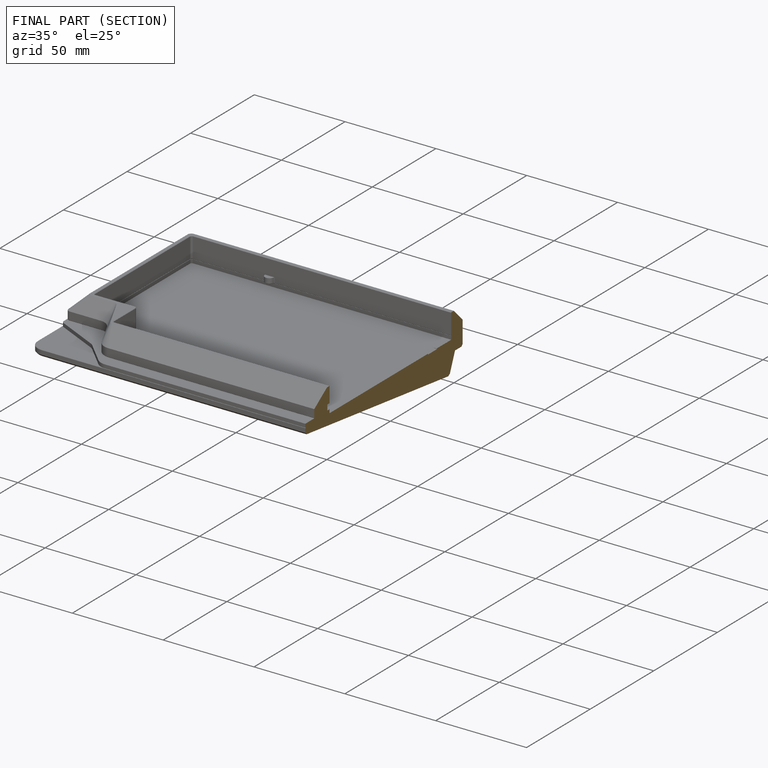
[diagram: finished part — half-section view (interior)]
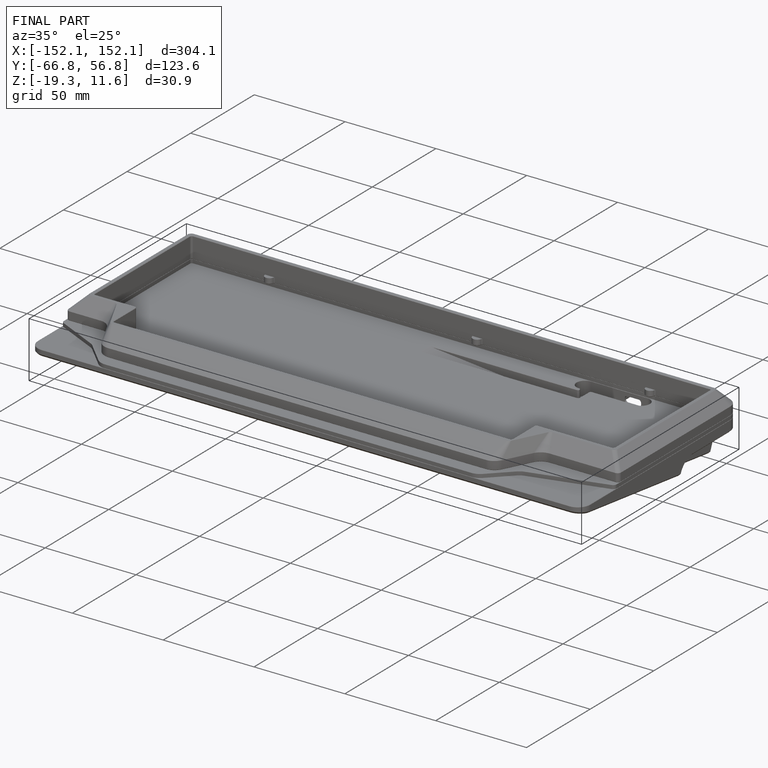
[diagram: finished part — iso view with bounding-box wireframe]
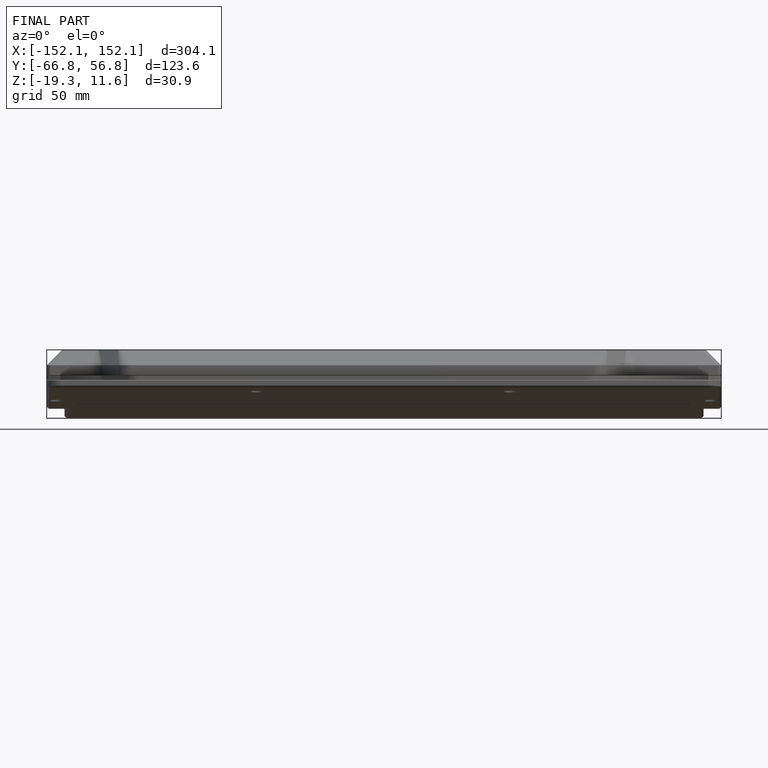
[diagram: finished part — front view with bounding-box wireframe]
